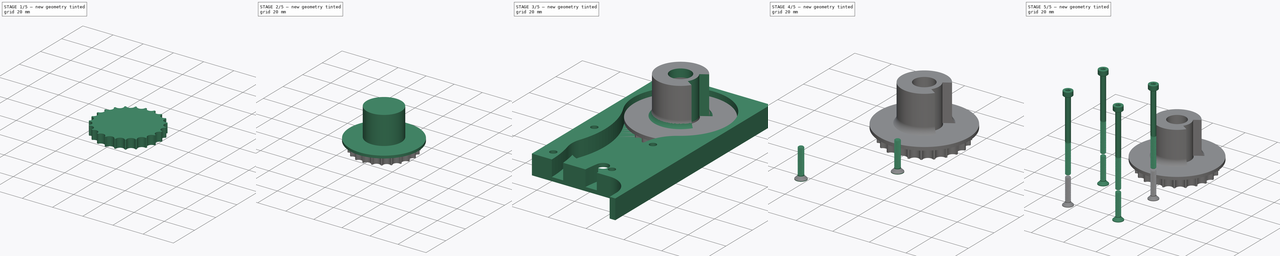
[diagram: build sequence overview — one tinted view per stage of 5, left to right]
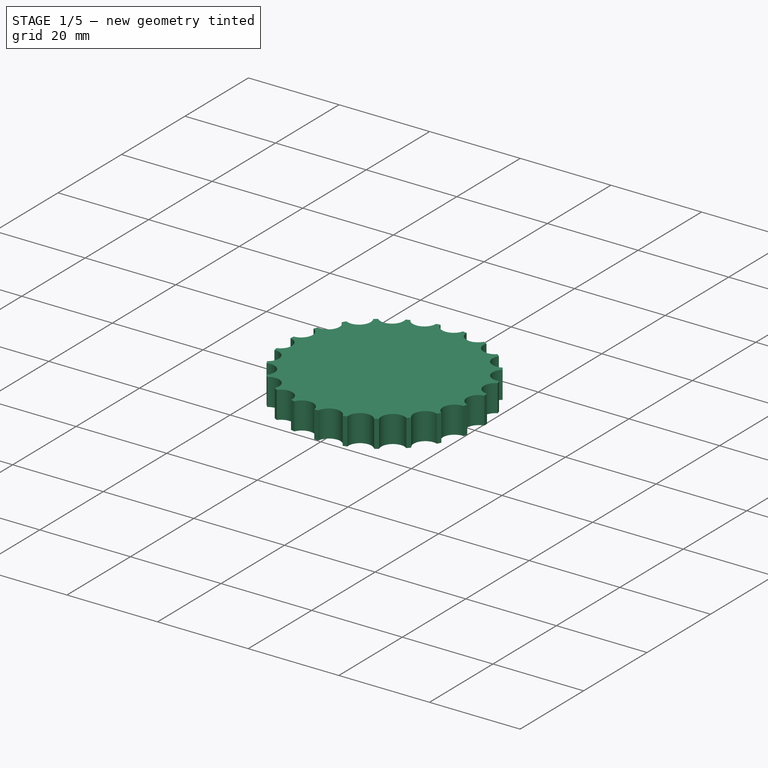
[diagram: stage 1 of 5 — iso view after this stage's code; geometry added in this stage tinted green]
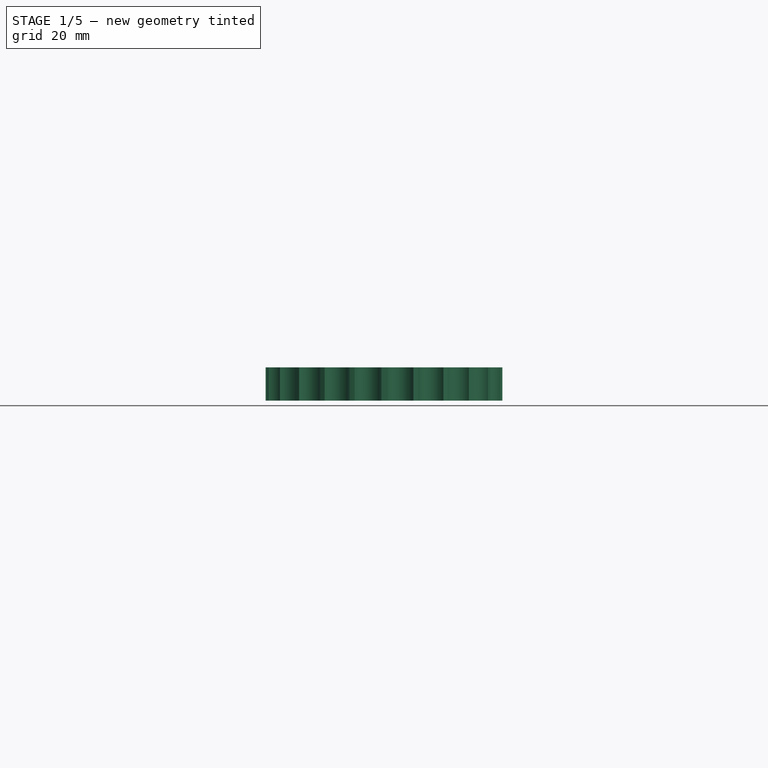
[diagram: stage 1 of 5 — front view after this stage's code; geometry added in this stage tinted green]
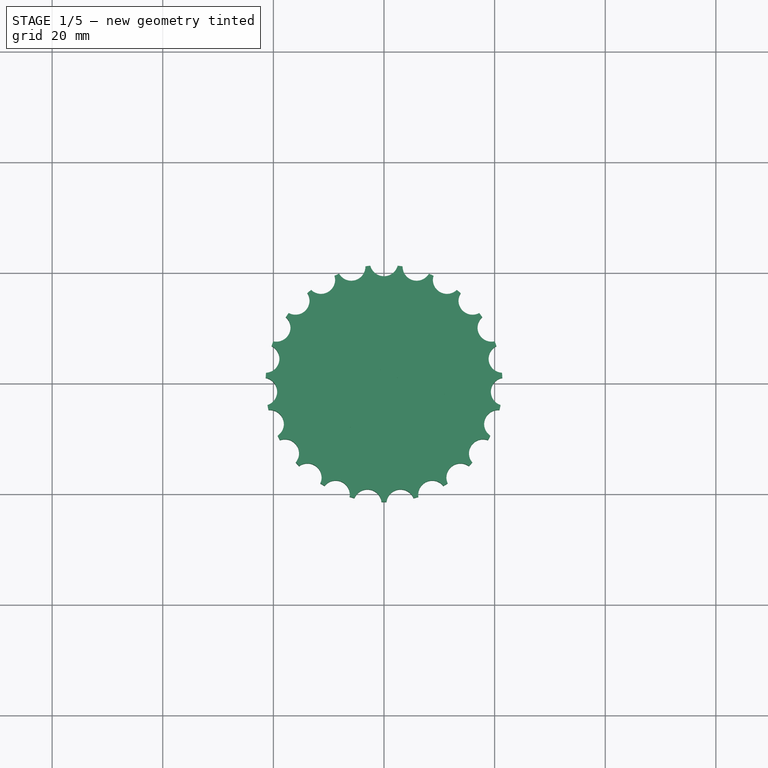
[diagram: stage 1 of 5 — top view after this stage's code; geometry added in this stage tinted green]
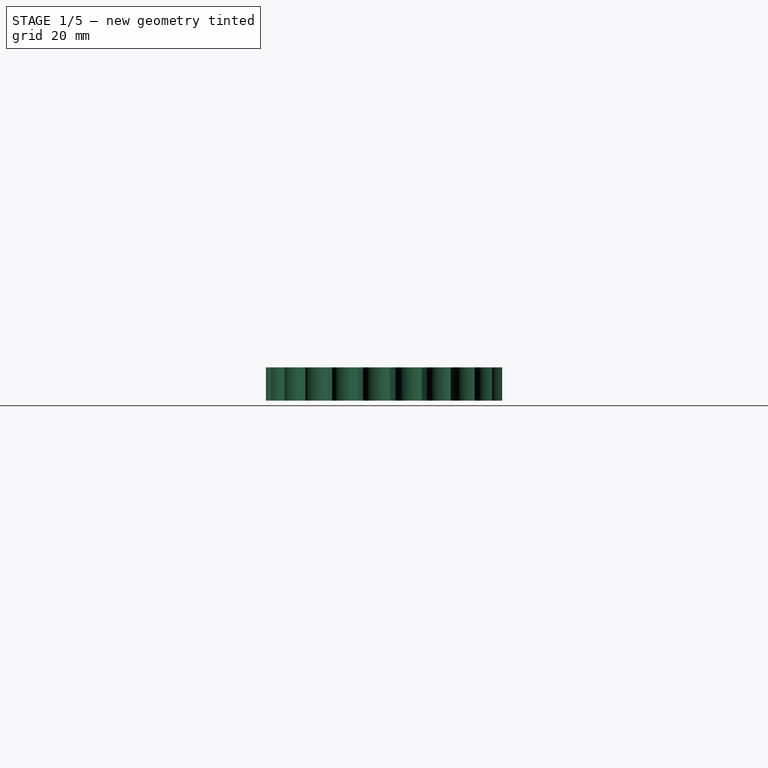
[diagram: stage 1 of 5 — right view after this stage's code; geometry added in this stage tinted green]
FCSTD DOCUMENT  (FreeCAD 0.21R33771 (Git))
Label: integrated-roller-clutch-v2
License: All rights reserved
LicenseURL: http://en.wikipedia.org/wiki/All_rights_reserved
objects: App::Link×37, Sketcher::SketchObject×29, Part::Feature×20, PartDesign::Pocket×13, PartDesign::Pad×12, Part::FeaturePython×9, PartDesign::Body×5, App::Part×5, PartDesign::Hole×3, PartDesign::PolarPattern×2, PartDesign::AdditiveHelix×1, PartDesign::CoordinateSystem×1, PartDesign::Revolution×1, Spreadsheet::Sheet×1
note: 125 computed .brp shape members not serialized (recipe doc carries the construction recipe); baked Part::Feature solids carry a one-line shape summary decoded from their .brp

FEATURE [Sketcher::SketchObject] Sketch003
  FullyConstrained = true
  MapMode = 5
  Support = -> [XY_Plane001]
  expr: Constraints[7] = 13 * 6 / pi - 1
  sketch-geometry (3):
    g0: Circle CenterX=0 CenterY=0 CenterZ=0 NormalX=0 NormalY=0 NormalZ=1 AngleXU=0 Radius=11.9141
    g1: ArcOfCircle CenterX=0 CenterY=0 CenterZ=0 NormalX=0 NormalY=0 NormalZ=1 AngleXU=0 Radius=2.575 StartAngle=2.28245 EndAngle=7.14233
    g2: LineSegment StartX=-1.6817 StartY=1.95 StartZ=0 EndX=1.6817 EndY=1.95 EndZ=0
  constraints (8):
    c: Coincident(g0,g-1)
    c: Coincident(g1,g0)
    c: Coincident(g2,g1)
    c: Coincident(g2,g1)
    c: Horizontal(g2)
    c: Diameter(g1) = 5.15
    c: Distance(g0,g2) = 1.95
    c: Diameter(g0) = 23.8282
FEATURE [PartDesign::Pad] Pad001
  Direction = (1,1,1)
  Length = 6
  Length2 = 100
  Profile = -> Sketch003
  Type = 0
FEATURE [Sketcher::SketchObject] Sketch004
  ExternalGeometry = -> [Pad001]
  FullyConstrained = true
  MapMode = 5
  Placement = pos=(0,0,6) rot=(0,0,1;0rad)
  Support = -> [Pad001]
  sketch-geometry (2):
    g0: Circle CenterX=0 CenterY=12.4141 CenterZ=0 NormalX=0 NormalY=0 NormalZ=1 AngleXU=0 Radius=2.55
    g1: GeomPoint X=0 Y=11.9141 Z=0
  constraints (6):
    c: PointOnObject(g0,g-2)
    c: PointOnObject(g1,g-2)
    c: PointOnObject(g1,g-3)
    c: Distance(g0,g1) = 0.5
    c: Diameter(g0) = 5.1
    c: Distance(g-1,g0) = 12.4141
FEATURE [PartDesign::Pocket] Pocket001
  BaseFeature = -> Pad001
  Direction = (1,1,1)
  Length = 5
  Length2 = 100
  Profile = -> Sketch004
  Type = 1
FEATURE [PartDesign::PolarPattern] PolarPattern
  Angle = 360
  Axis = -> Sketch004 [N_Axis]
  BaseFeature = -> Pocket001
  Occurrences = 13
  Originals = -> [Pocket001]
FEATURE [Sketcher::SketchObject] Sketch012
  FullyConstrained = true
  MapMode = 5
  Support = -> [XY_Plane002]
  expr: Constraints[1] = 23 * 5.85 / pi
  sketch-geometry (1):
    g0: Circle CenterX=0 CenterY=0 CenterZ=0 NormalX=0 NormalY=0 NormalZ=1 AngleXU=0 Radius=21.4143
  constraints (2):
    c: Coincident(g0,g-1)
    c: Diameter(g0) = 42.8286
FEATURE [PartDesign::Pad] Pad007
  Direction = (1,1,1)
  Length = 6
  Length2 = 100
  Profile = -> Sketch012
  Type = 0
  expr: Length = Pad001.Length
FEATURE [Sketcher::SketchObject] Sketch013
  ExternalGeometry = -> [Pad007]
  FullyConstrained = true
  MapMode = 5
  Placement = pos=(0,0,6) rot=(0,0,1;0rad)
  Support = -> [Pad007]
  sketch-geometry (2):
    g0: Circle CenterX=0 CenterY=21.9143 CenterZ=0 NormalX=0 NormalY=0 NormalZ=1 AngleXU=0 Radius=2.55
    g1: GeomPoint X=0 Y=21.4143 Z=0
  constraints (5):
    c: PointOnObject(g0,g-2)
    c: PointOnObject(g1,g-3)
    c: PointOnObject(g1,g-2)
    c: Distance(g1,g0) = 0.5
    c: Diameter(g0) = 5.1
FEATURE [PartDesign::Pocket] Pocket002
  BaseFeature = -> Pad007
  Direction = (1,1,1)
  Length = 5
  Length2 = 100
  Profile = -> Sketch013
  Type = 1
FEATURE [PartDesign::PolarPattern] PolarPattern001
  Angle = 360
  Axis = -> Sketch013 [N_Axis]
  BaseFeature = -> Pocket002
  Occurrences = 23
  Originals = -> [Pocket002]
FEATURE [Sketcher::SketchObject] Sketch014
  FullyConstrained = true
  MapMode = 5
  Placement = pos=(0,0,0) rot=(1,0,0;3.14159rad)
  Support = -> [PolarPattern001]
  expr: Constraints[1] = 27 + 6 + 1
  expr: Constraints[3] = 20.3
  sketch-geometry (2):
    g0: Circle CenterX=0 CenterY=0 CenterZ=0 NormalX=0 NormalY=0 NormalZ=1 AngleXU=0 Radius=17
    g1: Circle CenterX=0 CenterY=0 CenterZ=0 NormalX=0 NormalY=0 NormalZ=1 AngleXU=0 Radius=10.15
  constraints (4):
    c: Coincident(g0,g-1)
    c: Diameter(g0) = 34
    c: Coincident(g1,g0)
    c: Diameter(g1) = 20.3
FEATURE [PartDesign::Pocket] Pocket003
  BaseFeature = -> PolarPattern001
  Direction = (0,0,1)
  Length = 4
  Length2 = 100
  Profile = -> Sketch014
  Type = 0
FEATURE [PartDesign::Body] Body002  label="Cover Gear"
  Group = -> [Sketch012,Pad007,Sketch013,Pocket002,PolarPattern001,Sketch014,Pocket003,Sketch015,Pocket004,Sketch016,Pad008,Sketch018,Pad009,Sketch060,Pocket013]
  Origin = -> Origin002
  Placement = pos=(0,0,2.4) rot=(0,0,1;0rad)
  Tip = -> Pocket013
  expr: .Placement.Base.z = 2 + 0.4
FEATURE [Sketcher::SketchObject] Sketch062
  ExternalGeometry = -> [PolarPattern]
  FullyConstrained = true
  MapMode = 5
  Placement = pos=(0,0,6) rot=(0,0,1;0rad)
  Support = -> [PolarPattern]
  sketch-geometry (1):
    g0: Circle CenterX=0 CenterY=0 CenterZ=0 NormalX=0 NormalY=0 NormalZ=1 AngleXU=0 Radius=2.575
  constraints (2):
    c: Coincident(g0,g-1)
    c: Tangent(g0,g-3)
FEATURE [PartDesign::Pocket] Pocket014
  BaseFeature = -> PolarPattern
  Direction = (1,1,1)
  Length = 1.2
  Length2 = 100
  Profile = -> Sketch062
  Type = 0
FEATURE [PartDesign::Body] Body001  label="Stepper Gear"
  Group = -> [Sketch003,Pad001,Sketch004,Pocket001,PolarPattern,Sketch062,Pocket014]
  Origin = -> Origin001
  Placement = pos=(-5.85,-50.15,2.4) rot=(0,0,1;1.5708rad)
  Tip = -> Pocket014
  expr: .Placement.Base.x = -28 + 2 + 40.3 / 2
  expr: .Placement.Base.y = -(25 + 5 + 40.3 / 2)
  expr: .Placement.Base.z = 2 + 0.4
FEATURE [Spreadsheet::Sheet] Spreadsheet  label="Tolerances"
  cells = A5='Snug; B5(Snug)=0.2; A6='Loose; B6(Loose)=0.4
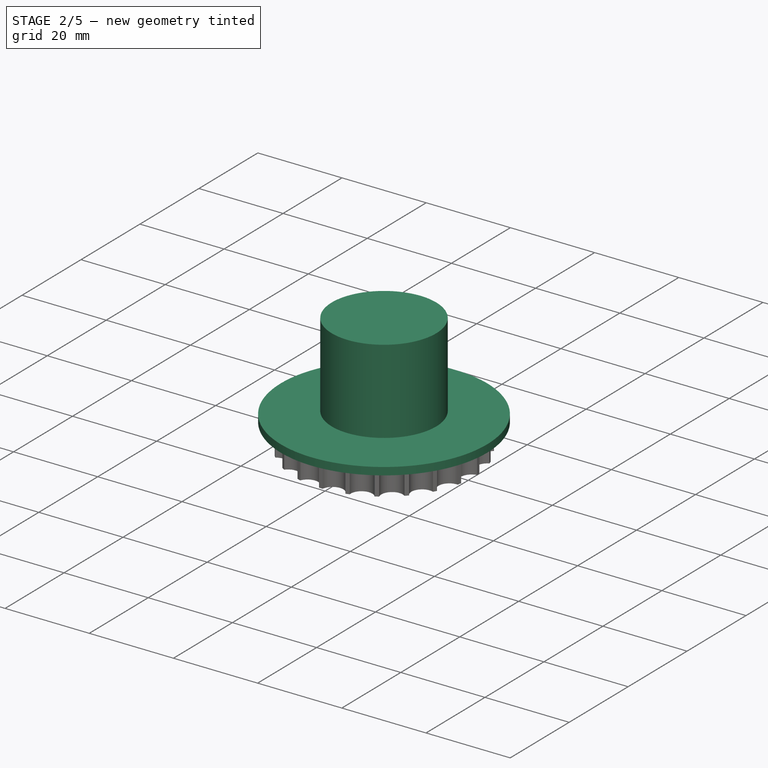
[diagram: stage 2 of 5 — iso view after this stage's code; geometry added in this stage tinted green]
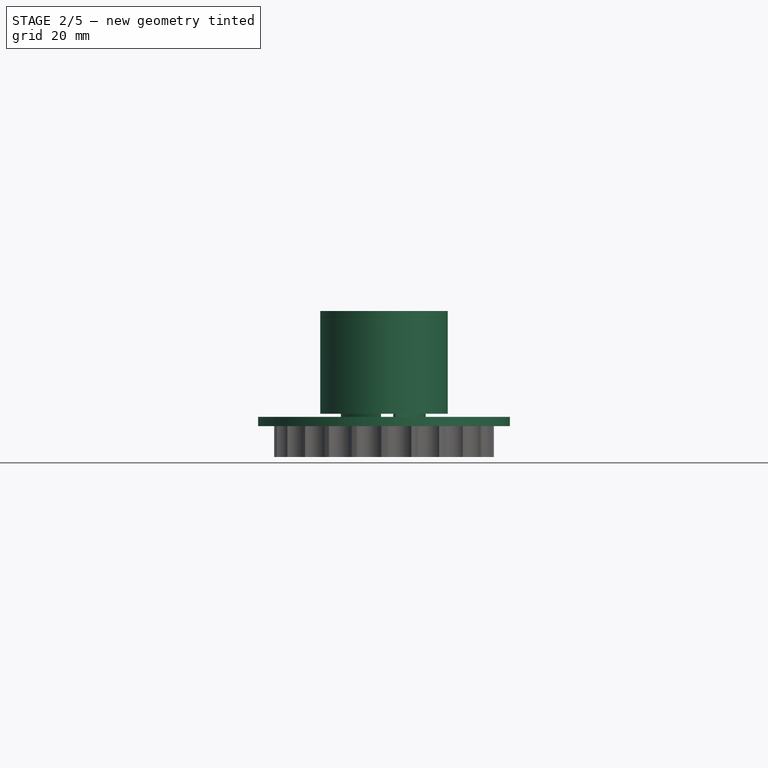
[diagram: stage 2 of 5 — front view after this stage's code; geometry added in this stage tinted green]
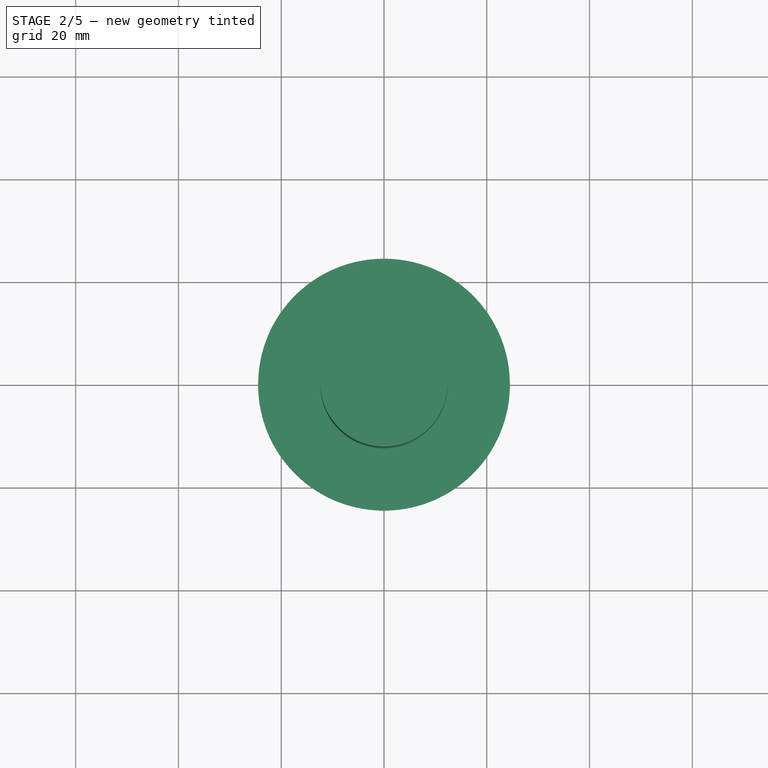
[diagram: stage 2 of 5 — top view after this stage's code; geometry added in this stage tinted green]
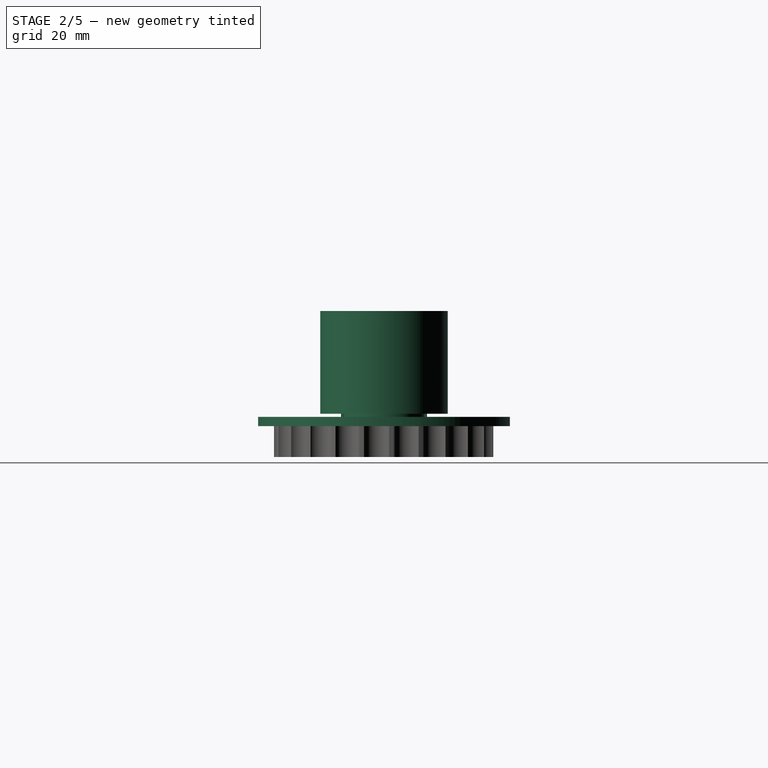
[diagram: stage 2 of 5 — right view after this stage's code; geometry added in this stage tinted green]
FEATURE [Sketcher::SketchObject] Sketch015
  FullyConstrained = true
  MapMode = 5
  Placement = pos=(0,0,0) rot=(1,0,0;3.14159rad)
  Support = -> [Pocket003]
  expr: Constraints[1] = 16.8
  sketch-geometry (1):
    g0: Circle CenterX=0 CenterY=0 CenterZ=0 NormalX=0 NormalY=0 NormalZ=1 AngleXU=0 Radius=8.4
  constraints (2):
    c: Coincident(g0,g-1)
    c: Diameter(g0) = 16.8
FEATURE [PartDesign::Pocket] Pocket004
  BaseFeature = -> Pocket003
  Direction = (0,0,1)
  Length = 5
  Length2 = 100
  Profile = -> Sketch015
  Type = 1
FEATURE [Sketcher::SketchObject] Sketch016
  ExternalGeometry = -> [Pocket004]
  FullyConstrained = true
  MapMode = 5
  Placement = pos=(0,0,0) rot=(1,0,0;3.14159rad)
  Support = -> [Pocket004]
  sketch-geometry (6):
    g0: ArcOfCircle CenterX=0 CenterY=0 CenterZ=0 NormalX=0 NormalY=0 NormalZ=1 AngleXU=0 Radius=8.4 StartAngle=1.65806 EndAngle=4.62512
    g1: ArcOfCircle CenterX=0 CenterY=0 CenterZ=0 NormalX=0 NormalY=0 NormalZ=1 AngleXU=0 Radius=6.7 StartAngle=1.65806 EndAngle=4.62512
    g2: LineSegment StartX=-0.732108 StartY=8.36804 StartZ=0 EndX=-0.583943 EndY=6.6745 EndZ=0
    g3: LineSegment StartX=-0.732108 StartY=-8.36804 StartZ=0 EndX=-0.583943 EndY=-6.6745 EndZ=0
    g4: LineSegment StartX=-0.583943 StartY=-6.6745 StartZ=0 EndX=8.4 EndY=0 EndZ=0
    g5: LineSegment StartX=8.4 StartY=0 StartZ=0 EndX=-0.583943 EndY=6.6745 EndZ=0
  constraints (17):
    c: Coincident(g0,g-1)
    c: PointOnObject(g0,g-3)
    c: Coincident(g1,g0)
    c: Coincident(g2,g0)
    c: Coincident(g2,g1)
    c: Coincident(g3,g0)
    c: Coincident(g3,g1)
    c: Perpendicular(g0,g3)
    c: Perpendicular(g0,g2)
    c: Diameter(g1) = 13.4
    c: Angle(g2,g3) = 2.96706
    c: Coincident(g4,g1)
    c: PointOnObject(g4,g-1)
    c: Coincident(g5,g4)
    c: Coincident(g5,g1)
    c: Equal(g4,g5)
    c: PointOnObject(g4,g-3)
FEATURE [PartDesign::Pad] Pad008
  BaseFeature = -> Pocket004
  Direction = (0,0,-1)
  Length = 20
  Length2 = 100
  Profile = -> Sketch016
  Reversed = true
  Type = 0
FEATURE [Part::Feature] Feature  label="SKF_W 61704-2RS002"
  Placement = pos=(0,0,2.4) rot=(0,-1,0;1.5708rad)
  shape: bbox 29.22 x 29.22 x 4 mm, 58 faces, 20 solids (baked)
FEATURE [Part::Feature] Pulsivo_Stepper_17HS8401S
  Placement = pos=(-5.85,-50.15,57.6) rot=(0.57735,0.57735,-0.57735;4.18879rad)
  shape: bbox 48.3 x 42.3 x 69.31 mm, 192 faces, 0 solids (baked)
  expr: .Placement.Base.z = Pad.Length + 47.2 mm
FEATURE [Sketcher::SketchObject] Sketch018
  ExternalGeometry = -> [Pad008]
  FullyConstrained = true
  MapMode = 5
  Placement = pos=(0,0,6) rot=(0,0,1;0rad)
  Support = -> [Pad008]
  sketch-geometry (2):
    g0: Circle CenterX=0 CenterY=0 CenterZ=0 NormalX=0 NormalY=0 NormalZ=1 AngleXU=0 Radius=24.5
    g1: Circle CenterX=0 CenterY=0 CenterZ=0 NormalX=0 NormalY=0 NormalZ=1 AngleXU=0 Radius=8.4
  constraints (4):
    c: Coincident(g0,g-1)
    c: Coincident(g1,g0)
    c: PointOnObject(g-3,g1)
    c: Diameter(g0) = 49
FEATURE [PartDesign::Pad] Pad009
  BaseFeature = -> Pad008
  Direction = (0,0,1)
  Length = 1.8
  Length2 = 100
  Profile = -> Sketch018
  Type = 0
FEATURE [Sketcher::SketchObject] Sketch020
  FullyConstrained = false
  MapMode = 5
  Placement = pos=(0,0,0) rot=(0.57735,0.57735,0.57735;2.0944rad)
  Support = -> [YZ_Plane]
  sketch-geometry (2):
    g0: Circle CenterX=-84.2293 CenterY=5.2 CenterZ=0 NormalX=0 NormalY=0 NormalZ=1 AngleXU=0 Radius=3.5
    g1: GeomPoint X=-80.7293 Y=5.2 Z=0
  constraints (3):
    c: Diameter(g0) = 7
    c: PointOnObject(g1,g0)
    c: Horizontal(g1,g0)
FEATURE [Sketcher::SketchObject] Sketch019
  FullyConstrained = false
  MapMode = 5
  Placement = pos=(0,0,10.4) rot=(0,0,1;0rad)
  sketch-geometry (7):
    g0: LineSegment StartX=28.0692 StartY=22.5865 StartZ=0 EndX=27.0025 EndY=22.5865 EndZ=0
    g1: LineSegment StartX=26.0025 StartY=23.5865 StartZ=0 EndX=26.0025 EndY=25.0865 EndZ=0
    g2: LineSegment StartX=26.0025 StartY=25.0865 StartZ=0 EndX=24.0025 EndY=25.0865 EndZ=0
    g3: ArcOfCircle CenterX=28.9326 CenterY=20.9584 CenterZ=0 NormalX=0 NormalY=0 NormalZ=1 AngleXU=0 Radius=6.43014 StartAngle=2.4445 EndAngle=4.57772
    g4: LineSegment StartX=28.0692 StartY=14.5865 StartZ=0 EndX=28.0692 EndY=22.5865 EndZ=0
    g5: ArcOfCircle CenterX=27.0025 CenterY=23.5865 CenterZ=0 NormalX=0 NormalY=0 NormalZ=1 AngleXU=0 Radius=1 StartAngle=3.14159 EndAngle=4.71239
    g6: GeomPoint X=22.5025 Y=20.9865 Z=0
  constraints (16):
    c: Horizontal(g0)
    c: Vertical(g1)
    c: Coincident(g2,g1)
    c: Horizontal(g2)
    c: Coincident(g3,g2)
    c: Coincident(g4,g3)
    c: Coincident(g4,g0)
    c: Tangent(g1,g5) = 1.5708
    c: Tangent(g0,g5) = 1.5708
    c: Distance(g4) = 8
    c: DistanceY(g0,g1) = 2.5
    c: PointOnObject(g6,g3)
    c: DistanceY(g6,g2) = 4.1
    c: Radius(g5) = 1
    c: Distance(g2) = 2
    c: DistanceX(g6,g1) = 3.5
FEATURE [Sketcher::SketchObject] Sketch049
  FullyConstrained = true
  MapMode = 5
  Support = -> [XY_Plane011]
  sketch-geometry (7):
    g0: ArcOfCircle CenterX=0 CenterY=0 CenterZ=0 NormalX=0 NormalY=0 NormalZ=1 AngleXU=0 Radius=8.1 StartAngle=4.99164 EndAngle=7.57473
    g1: ArcOfCircle CenterX=0 CenterY=0 CenterZ=0 NormalX=0 NormalY=0 NormalZ=1 AngleXU=0 Radius=6.5 StartAngle=4.99164 EndAngle=7.57473
    g2: LineSegment StartX=1.79164 StartY=6.2482 StartZ=0 EndX=2.23266 EndY=7.78622 EndZ=0
    g3: LineSegment StartX=1.79164 StartY=-6.2482 StartZ=0 EndX=2.23266 EndY=-7.78622 EndZ=0
    g4: GeomPoint X=-5 Y=0 Z=0
    g5: LineSegment StartX=-5 StartY=0 StartZ=0 EndX=1.79164 EndY=6.2482 EndZ=0
    g6: LineSegment StartX=-5 StartY=0 StartZ=0 EndX=1.79164 EndY=-6.2482 EndZ=0
  constraints (18):
    c: Coincident(g0,g-1)
    c: Coincident(g1,g0)
    c: Coincident(g2,g1)
    c: Coincident(g2,g0)
    c: Coincident(g3,g1)
    c: Coincident(g3,g0)
    c: Perpendicular(g0,g2)
    c: Perpendicular(g1,g3)
    c: Diameter(g1) = 13
    c: Angle(g3,g2) = 2.58309
    c: PointOnObject(g4,g-1)
    c: Coincident(g5,g4)
    c: Coincident(g5,g1)
    c: Coincident(g6,g4)
    c: Coincident(g6,g1)
    c: Equal(g6,g5)
    c: Distance(g4,g0) = 5
    c: Distance(g2) = 1.6
FEATURE [Sketcher::SketchObject] Sketch050
  FullyConstrained = true
  MapMode = 5
  Placement = pos=(0,0,8.4) rot=(0,0,1;0rad)
  sketch-geometry (1):
    g0: Circle CenterX=0 CenterY=0 CenterZ=0 NormalX=0 NormalY=0 NormalZ=1 AngleXU=0 Radius=12.4
  constraints (2):
    c: Coincident(g0,g-1)
    c: Diameter(g0) = 24.8
FEATURE [PartDesign::Pad] Pad022
  AllowMultiFace = false
  Direction = (1,1,1)
  Length = 20
  Length2 = 100
  Placement = pos=(0,0,8.4) rot=(0,0,1;0rad)
  Profile = -> Sketch050
  Type = 0
  expr: Length = 20
FEATURE [Sketcher::SketchObject] Sketch058
  FullyConstrained = true
  MapMode = 5
  Placement = pos=(0,0,24.1) rot=(1,0,0;3.14159rad)
  sketch-geometry (1):
    g0: Circle CenterX=0 CenterY=0 CenterZ=0 NormalX=0 NormalY=0 NormalZ=1 AngleXU=0 Radius=5.5
  constraints (2):
    c: Coincident(g0,g-1)
    c: Diameter(g0) = 11
FEATURE [PartDesign::Pad] Pad027
  BaseFeature = -> Pad022
  Direction = (1,1,1)
  Length = 10
  Length2 = 100
  Placement = pos=(0,0,8.4) rot=(0,0,1;0rad)
  Profile = -> Sketch049
  Type = 3
  UpToFace = -> Pad022 [Face2]
FEATURE [Sketcher::SketchObject] Sketch056
  ExternalGeometry = -> [Pad027]
  FullyConstrained = true
  MapMode = 5
  Placement = pos=(0,0,8.4) rot=(1,0,0;3.14159rad)
  sketch-geometry (4):
    g0: ArcOfCircle CenterX=0 CenterY=0 CenterZ=0 NormalX=0 NormalY=0 NormalZ=1 AngleXU=0 Radius=9 StartAngle=1.29154 EndAngle=4.99164
    g1: ArcOfCircle CenterX=0 CenterY=0 CenterZ=0 NormalX=0 NormalY=0 NormalZ=1 AngleXU=0 Radius=6.5 StartAngle=4.99164 EndAngle=7.57473
    g2: LineSegment StartX=1.79164 StartY=6.2482 StartZ=0 EndX=2.48074 EndY=8.65136 EndZ=0
    g3: LineSegment StartX=1.79164 StartY=-6.2482 StartZ=0 EndX=2.48074 EndY=-8.65136 EndZ=0
  constraints (11):
    c: Coincident(g0,g-1)
    c: Coincident(g1,g0)
    c: Coincident(g1,g-3)
    c: Coincident(g1,g-3)
    c: Coincident(g2,g1)
    c: Coincident(g3,g1)
    c: Coincident(g0,g2)
    c: Coincident(g0,g3)
    c: PointOnObject(g-4,g2)
    c: PointOnObject(g-4,g3)
    c: Diameter(g0) = 18
FEATURE [PartDesign::Pocket] Pocket009
  BaseFeature = -> Pad027
  Direction = (1,1,1)
  Length = 12.2
  Length2 = 100
  Placement = pos=(0,0,8.4) rot=(0,0,1;0rad)
  Profile = -> Sketch056
  Type = 0
FEATURE [Sketcher::SketchObject] Sketch057
  FullyConstrained = true
  MapMode = 5
  Placement = pos=(0,0,20.6) rot=(1,0,0;3.14159rad)
  Support = -> [Pocket009]
  sketch-geometry (1):
    g0: Circle CenterX=0 CenterY=0 CenterZ=0 NormalX=0 NormalY=0 NormalZ=1 AngleXU=0 Radius=6.05
  constraints (2):
    c: Coincident(g0,g-1)
    c: Diameter(g0) = 12.1
FEATURE [PartDesign::Pocket] Pocket010
  BaseFeature = -> Pocket009
  Direction = (1,1,1)
  Length = 3.5
  Length2 = 100
  Placement = pos=(0,0,8.4) rot=(0,0,1;0rad)
  Profile = -> Sketch057
  Type = 0
FEATURE [PartDesign::Body] Body006  label="Cover Adapter"
  Group = -> [Sketch050,Pad022,Sketch056,Sketch049,Pad027,Pocket009,Sketch057,Pocket010,Sketch058,Pocket011,Sketch055,Pocket012,Sketch059,Revolution]
  Origin = -> Origin011
  Placement = pos=(0,0,2.4) rot=(0,0,1;0rad)
  Tip = -> Revolution
FEATURE [Sketcher::SketchObject] Sketch060
  ExternalGeometry = -> [Pad009]
  FullyConstrained = true
  MapMode = 5
  Placement = pos=(0,0,4) rot=(1,0,0;3.14159rad)
  Support = -> [Pad009]
  sketch-geometry (2):
    g0: Circle CenterX=0 CenterY=0 CenterZ=0 NormalX=0 NormalY=0 NormalZ=1 AngleXU=0 Radius=17
    g1: Circle CenterX=0 CenterY=0 CenterZ=0 NormalX=0 NormalY=0 NormalZ=1 AngleXU=0 Radius=11
  constraints (4):
    c: Coincident(g0,g-1)
    c: Equal(g0,g-3)
    c: Coincident(g1,g0)
    c: Diameter(g1) = 22
FEATURE [PartDesign::Pocket] Pocket013
  BaseFeature = -> Pad009
  Direction = (0,0,1)
  Length = 0.4
  Length2 = 100
  Profile = -> Sketch060
  Type = 0
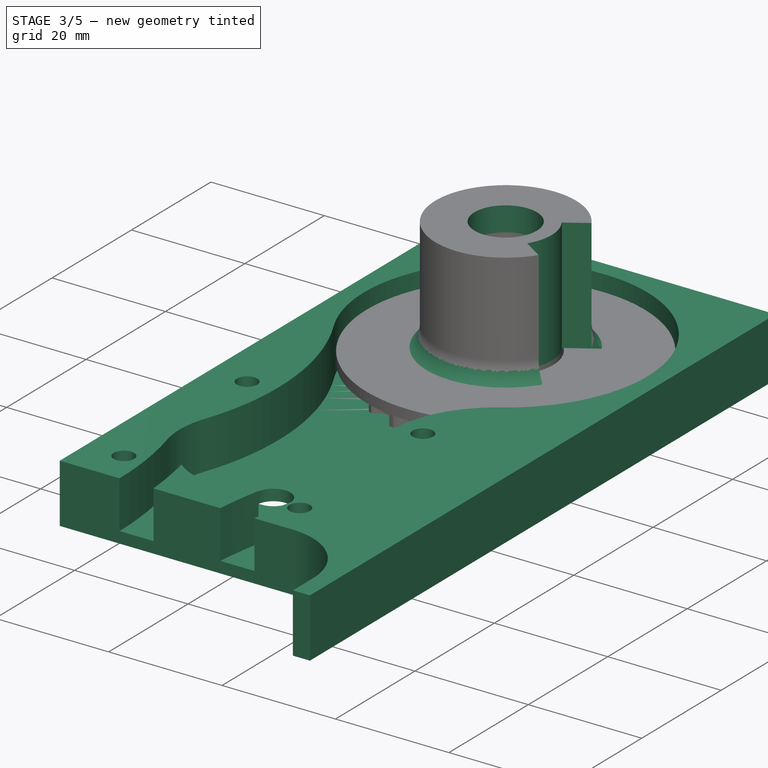
[diagram: stage 3 of 5 — iso view after this stage's code; geometry added in this stage tinted green]
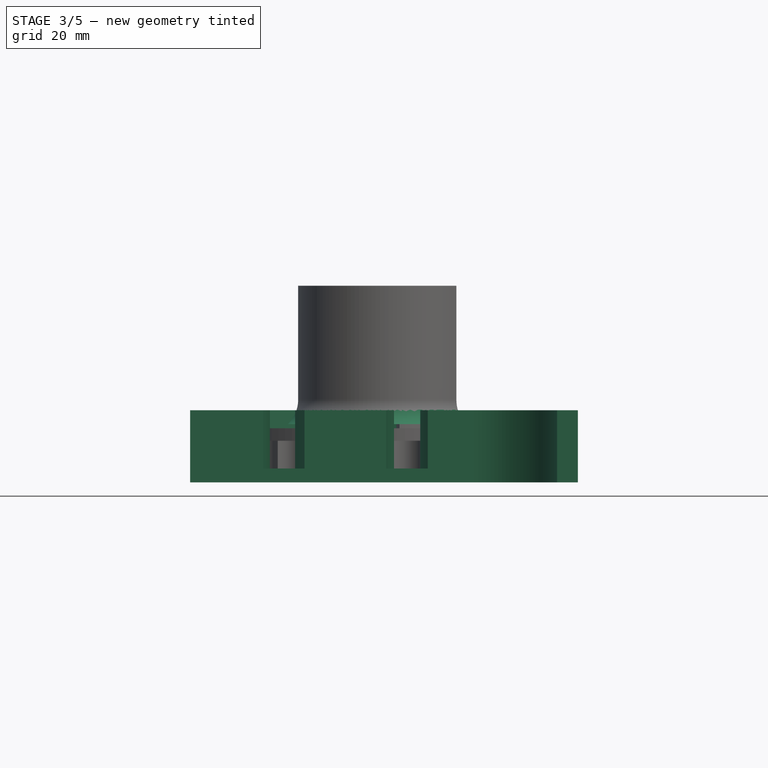
[diagram: stage 3 of 5 — front view after this stage's code; geometry added in this stage tinted green]
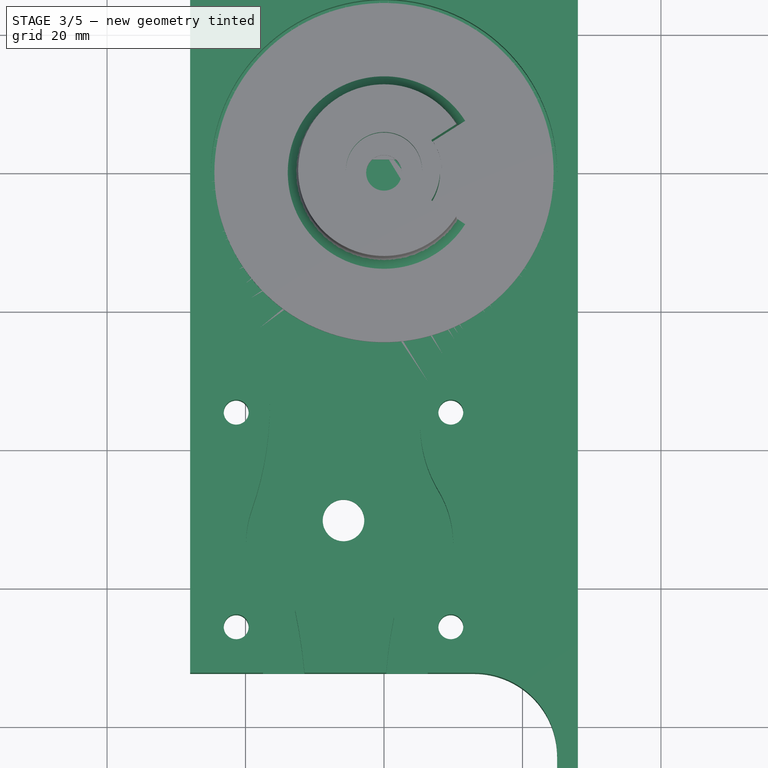
[diagram: stage 3 of 5 — top view after this stage's code; geometry added in this stage tinted green]
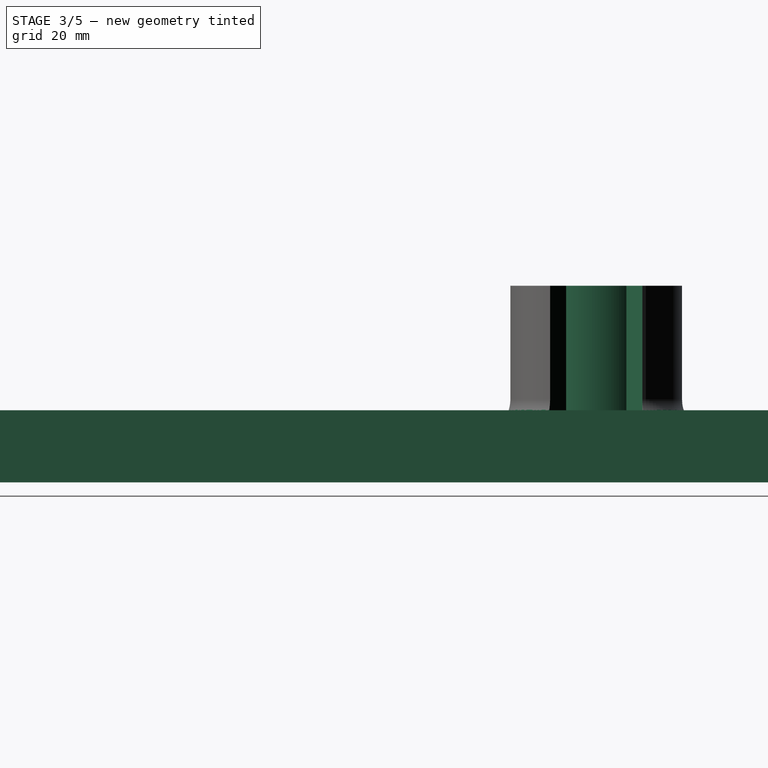
[diagram: stage 3 of 5 — right view after this stage's code; geometry added in this stage tinted green]
FEATURE [Sketcher::SketchObject] Sketch
  FullyConstrained = true
  MapMode = 5
  Support = -> [XY_Plane]
  expr: Constraints[10] = 50
  sketch-geometry (18):
    g0: Circle CenterX=0 CenterY=0 CenterZ=0 NormalX=0 NormalY=0 NormalZ=1 AngleXU=0 Radius=25
    g1: LineSegment StartX=-28 StartY=28 StartZ=0 EndX=28 EndY=28 EndZ=0
    g2: LineSegment StartX=28 StartY=28 StartZ=0 EndX=28 EndY=-89.3 EndZ=0
    g3: LineSegment StartX=28 StartY=-89.3 StartZ=0 EndX=25 EndY=-89.3 EndZ=0
    g4: LineSegment StartX=25 StartY=-89.3 StartZ=0 EndX=25 EndY=-84.3 EndZ=0
    g5: LineSegment StartX=13 StartY=-72.3 StartZ=0 EndX=-28 EndY=-72.3 EndZ=0
    g6: LineSegment StartX=-28 StartY=-72.3 StartZ=0 EndX=-28 EndY=28 EndZ=0
    g7: ArcOfCircle CenterX=13 CenterY=-84.3 CenterZ=0 NormalX=0 NormalY=0 NormalZ=1 AngleXU=0 Radius=12 StartAngle=0 EndAngle=1.5708
    g8: GeomPoint X=0 Y=-25 Z=0
    g9: GeomPoint X=0 Y=-30 Z=0
    g10: LineSegment StartX=14.3 StartY=-30 StartZ=0 EndX=-26 EndY=-30 EndZ=0
    g11: LineSegment StartX=-26 StartY=-30 StartZ=0 EndX=-26 EndY=-70.3 EndZ=0
    g12: LineSegment StartX=-26 StartY=-70.3 StartZ=0 EndX=14.3 EndY=-70.3 EndZ=0
    g13: LineSegment StartX=14.3 StartY=-70.3 StartZ=0 EndX=14.3 EndY=-30 EndZ=0
    g14: Circle CenterX=-5.85 CenterY=-50.15 CenterZ=0 NormalX=0 NormalY=0 NormalZ=1 AngleXU=0 Radius=28.4964
    g15: Circle CenterX=-5.85 CenterY=-50.15 CenterZ=0 NormalX=0 NormalY=0 NormalZ=1 AngleXU=0 Radius=3
    g16: LineSegment StartX=-28 StartY=-70.3 StartZ=0 EndX=-26 EndY=-70.3 EndZ=0
    g17: LineSegment StartX=-26 StartY=-70.3 StartZ=0 EndX=-26 EndY=-72.3 EndZ=0
  constraints (50):
    c: Coincident(g0,g-1)
    c: Horizontal(g1)
    c: Coincident(g2,g1)
    c: Vertical(g2)
    c: Coincident(g3,g2)
    c: Coincident(g4,g3)
    c: Horizontal(g5)
    c: Vertical(g6)
    c: Vertical(g4)
    c: Horizontal(g3)
    c: Diameter(g0) = 50
    c: Tangent(g7,g4) = -1.5708
    c: Distance(g3) = 3
    c: Tangent(g7,g5) = -1.5708
    c: Distance(g4) = 5
    c: PointOnObject(g8,g0)
    c: PointOnObject(g9,g-2)
    c: Distance(g9,g8) = 5
    c: Diameter(g7) = 24
    c: Coincident(g5,g6)
    c: Coincident(g10,g11)
    c: Coincident(g11,g12)
    c: Coincident(g12,g13)
    c: Coincident(g13,g10)
    c: Equal(g10,g11)
    c: Equal(g10,g12)
    c: Equal(g10,g13)
    c: PointOnObject(g10,g14)
    c: PointOnObject(g11,g14)
    c: PointOnObject(g12,g14)
    c: PointOnObject(g13,g14)
    c: Parallel(g12,g5)
    c: PointOnObject(g9,g10)
    c: Distance(g13) = 40.3
    c: Coincident(g15,g14)
    c: Diameter(g15) = 6
    c: Distance(g10) = 40.3
    c: PointOnObject(g16,g6)
    c: Coincident(g16,g11)
    c: Coincident(g17,g16)
    c: PointOnObject(g17,g5)
    c: Equal(g17,g16)
    c: Distance(g17) = 2
    c: Perpendicular(g12,g17)
    c: Perpendicular(g11,g16)
    c: PointOnObject(g8,g-2)
    c: DistanceY(g-1,g1) = 28
    c: DistanceX(g-1,g1) = 28
    c: Coincident(g1,g6)
    c: Distance(g1) = 56
FEATURE [PartDesign::Pad] Pad
  Direction = (0,0,1)
  Length = 10.4
  Length2 = 100
  Profile = -> Sketch
  Type = 0
  expr: Length = 2 mm + 0.2 mm + Pad001.Length + 0.2 mm + 2 mm
FEATURE [Sketcher::SketchObject] Sketch005
  ExternalGeometry = -> [Pad]
  FullyConstrained = true
  MapMode = 5
  Placement = pos=(0,0,0) rot=(1,0,0;3.14159rad)
  Support = -> [Pad]
  sketch-geometry (9):
    g0: LineSegment StartX=9.65 StartY=34.65 StartZ=0 EndX=9.65 EndY=65.65 EndZ=0
    g1: LineSegment StartX=9.65 StartY=65.65 StartZ=0 EndX=-21.35 EndY=65.65 EndZ=0
    g2: LineSegment StartX=-21.35 StartY=65.65 StartZ=0 EndX=-21.35 EndY=34.65 EndZ=0
    g3: LineSegment StartX=-21.35 StartY=34.65 StartZ=0 EndX=9.65 EndY=34.65 EndZ=0
    g4: Circle CenterX=-5.85 CenterY=50.15 CenterZ=0 NormalX=0 NormalY=0 NormalZ=1 AngleXU=0 Radius=21.9203
    g5: Circle CenterX=-21.35 CenterY=65.65 CenterZ=0 NormalX=0 NormalY=0 NormalZ=1 AngleXU=0 Radius=1.5
    g6: Circle CenterX=9.65 CenterY=65.65 CenterZ=0 NormalX=0 NormalY=0 NormalZ=1 AngleXU=0 Radius=1.5
    g7: Circle CenterX=9.65 CenterY=34.65 CenterZ=0 NormalX=0 NormalY=0 NormalZ=1 AngleXU=0 Radius=1.5
    g8: Circle CenterX=-21.35 CenterY=34.65 CenterZ=0 NormalX=0 NormalY=0 NormalZ=1 AngleXU=0 Radius=1.5
  constraints (22):
    c: Coincident(g0,g1)
    c: Coincident(g1,g2)
    c: Coincident(g2,g3)
    c: Coincident(g3,g0)
    c: Equal(g0,g1)
    c: Equal(g0,g2)
    c: Equal(g0,g3)
    c: PointOnObject(g0,g4)
    c: PointOnObject(g1,g4)
    c: PointOnObject(g2,g4)
    c: PointOnObject(g3,g4)
    c: Coincident(g4,g-4)
    c: Parallel(g1,g-3)
    c: Distance(g3) = 31
    c: Coincident(g5,g1)
    c: Coincident(g6,g0)
    c: Coincident(g7,g0)
    c: Coincident(g8,g2)
    c: Diameter(g8) = 3
    c: Equal(g8,g7)
    c: Equal(g8,g6)
    c: Equal(g8,g5)
FEATURE [PartDesign::Hole] Hole
  BaseFeature = -> Pad
  CustomThreadClearance = 0
  Depth = 25
  DepthType = 0
  Diameter = 3.6
  DrillForDepth = false
  DrillPoint = 1
  DrillPointAngle = 118
  HoleCutCountersinkAngle = 90
  HoleCutCustomValues = false
  HoleCutDepth = 0.5
  HoleCutDiameter = 7.1
  HoleCutType = 2
  ModelThread = false
  Profile = -> Sketch005
  Tapered = false
  TaperedAngle = 90
  ThreadClass = 0
  ThreadDepth = 23.5
  ThreadDepthType = 0
  ThreadDirection = 0
  ThreadFit = 2
  ThreadSize = 9
  ThreadType = 1
  Threaded = false
  UseCustomThreadClearance = false
FEATURE [Sketcher::SketchObject] Sketch006
  ExternalGeometry = -> [Hole]
  FullyConstrained = false
  MapMode = 5
  Placement = pos=(0,0,10.4) rot=(0,0,1;0rad)
  Support = -> [Hole]
  expr: Constraints[22] = 13 * 6 / pi
  expr: Constraints[23] = 13 * 6 / pi + 5.1
  expr: Constraints[7] = 50 mm
  sketch-geometry (13):
    g0: ArcOfCircle CenterX=0 CenterY=0 CenterZ=0 NormalX=0 NormalY=0 NormalZ=1 AngleXU=0 Radius=25 StartAngle=5.28927 EndAngle=9.92129
    g1: ArcOfCircle CenterX=-4.96805 CenterY=-53.6706 CenterZ=0 NormalX=0 NormalY=0 NormalZ=1 AngleXU=0 Radius=14.9641 StartAngle=2.8025 EndAngle=3.40354
    g2: ArcOfCircle CenterX=-4.96805 CenterY=-53.6706 CenterZ=0 NormalX=0 NormalY=0 NormalZ=1 AngleXU=0 Radius=14.9641 StartAngle=5.95611 EndAngle=6.82361
    g3: ArcOfCircle CenterX=-74.4541 CenterY=-72.3 CenterZ=0 NormalX=0 NormalY=0 NormalZ=1 AngleXU=0 Radius=56.9759 StartAngle=0 EndAngle=0.261943
    g4: ArcOfCircle CenterX=64.518 CenterY=-77.2446 CenterZ=0 NormalX=0 NormalY=0 NormalZ=1 AngleXU=0 Radius=58.412 StartAngle=2.81451 EndAngle=3.05684
    g5: ArcOfCircle CenterX=64.518 CenterY=-77.2446 CenterZ=0 NormalX=0 NormalY=0 NormalZ=1 AngleXU=0 Radius=64.3925 StartAngle=2.93924 EndAngle=3.06473
    g6: ArcOfCircle CenterX=-88.5335 CenterY=-79.2912 CenterZ=0 NormalX=0 NormalY=0 NormalZ=1 AngleXU=0 Radius=77.3718 StartAngle=0.0904824 EndAngle=0.208564
    g7: ArcOfCircle CenterX=-4.96805 CenterY=-53.6706 CenterZ=0 NormalX=0 NormalY=0 NormalZ=1 AngleXU=0 Radius=12.4141 StartAngle=4.0257 EndAngle=5.25473
    g8: ArcOfCircle CenterX=-61.9597 CenterY=-33.5686 CenterZ=0 NormalX=0 NormalY=0 NormalZ=1 AngleXU=0 Radius=45.4688 StartAngle=5.94409 EndAngle=6.7797
    g9: ArcOfCircle CenterX=23.7228 CenterY=-36.456 CenterZ=0 NormalX=0 NormalY=0 NormalZ=1 AngleXU=0 Radius=18.4949 StartAngle=2.14768 EndAngle=3.68201
    g10: LineSegment StartX=-17.4782 StartY=-72.3 StartZ=0 EndX=-11.4782 EndY=-72.3 EndZ=0
    g11: LineSegment StartX=0.315673 StartY=-72.3 StartZ=0 EndX=6.31567 EndY=-72.3 EndZ=0
    g12: GeomPoint X=-4.96805 Y=-74.7723 Z=0
  constraints (29):
    c: Coincident(g0,g-1)
    c: Coincident(g2,g1)
    c: Coincident(g5,g4)
    c: Coincident(g7,g1)
    c: Coincident(g7,g6)
    c: Coincident(g7,g5)
    c: Tangent(g9,g0) = 1.5708
    c: Diameter(g0) = 50
    c: Tangent(g0,g8) = 1.5708
    c: Tangent(g8,g1) = 1.5708
    c: Tangent(g2,g9) = 1.5708
    c: Equal(g2,g1)
    c: Tangent(g3,g1) = 1.5708
    c: Tangent(g2,g4) = 1.5708
    c: Coincident(g10,g3)
    c: Coincident(g10,g6)
    c: Coincident(g11,g5)
    c: Coincident(g11,g4)
    c: Equal(g10,g11)
    c: Distance(g10) = 6
    c: Vertical(g12,g1)
    c: Symmetric(g3,g4,g12)
    c: Diameter(g7) = 24.8282
    c: Diameter(g1) = 29.9282
    c: PointOnObject(g6,g-5)
    c: PointOnObject(g3,g-5)
    c: PointOnObject(g5,g-5)
    c: PointOnObject(g4,g-5)
    c: PointOnObject(g3,g-5)
FEATURE [PartDesign::Pocket] Pocket
  BaseFeature = -> Hole
  Direction = (0,0,-1)
  Length = 0
  Length2 = 100
  Offset = -2
  Profile = -> Sketch006
  Type = 3
  UpToFace = -> Hole [Face4]
FEATURE [Sketcher::SketchObject] Sketch007
  FullyConstrained = true
  MapMode = 5
  Placement = pos=(0,0,2) rot=(0,0,1;0rad)
  Support = -> [Pocket]
  expr: Constraints[1] = 33 mm
  expr: Constraints[3] = 22
  sketch-geometry (2):
    g0: Circle CenterX=0 CenterY=0 CenterZ=0 NormalX=0 NormalY=0 NormalZ=1 AngleXU=0 Radius=16.5
    g1: Circle CenterX=0 CenterY=0 CenterZ=0 NormalX=0 NormalY=0 NormalZ=1 AngleXU=0 Radius=11
  constraints (4):
    c: Coincident(g0,g-1)
    c: Diameter(g0) = 33
    c: Coincident(g1,g0)
    c: Diameter(g1) = 22
FEATURE [PartDesign::Pad] Pad002
  BaseFeature = -> Pocket
  Direction = (0,0,1)
  Length = 0.4
  Length2 = 100
  Profile = -> Sketch007
  Type = 0
FEATURE [Sketcher::SketchObject] Sketch021
  ExternalGeometry = -> [Pad002]
  FullyConstrained = true
  MapMode = 5
  Placement = pos=(0,0,2.4) rot=(0,0,1;0rad)
  Support = -> [Pad002]
  expr: Constraints[1] = 27.3
  sketch-geometry (2):
    g0: Circle CenterX=0 CenterY=0 CenterZ=0 NormalX=0 NormalY=0 NormalZ=1 AngleXU=0 Radius=13.65
    g1: Circle CenterX=0 CenterY=0 CenterZ=0 NormalX=0 NormalY=0 NormalZ=1 AngleXU=0 Radius=16.5
  constraints (4):
    c: Coincident(g0,g-1)
    c: Diameter(g0) = 27.3
    c: Coincident(g1,g0)
    c: Equal(g1,g-3)
FEATURE [PartDesign::Pad] Pad023
  BaseFeature = -> Pad002
  Direction = (0,0,1)
  Length = 3.6
  Length2 = 100
  Profile = -> Sketch021
  Type = 0
FEATURE [Sketcher::SketchObject] Sketch023
  FullyConstrained = true
  MapMode = 5
  Placement = pos=(0,0,2) rot=(0,0,1;0rad)
  Support = -> [Pad023]
  sketch-geometry (1):
    g0: Circle CenterX=0 CenterY=0 CenterZ=0 NormalX=0 NormalY=0 NormalZ=1 AngleXU=0 Radius=6
  constraints (2):
    c: Coincident(g0,g-1)
    c: Diameter(g0) = 12
FEATURE [PartDesign::Pad] Pad024
  BaseFeature = -> Pad023
  Direction = (0,0,1)
  Length = 1
  Length2 = 100
  Profile = -> Sketch023
  Type = 0
FEATURE [PartDesign::Pocket] Pocket011
  BaseFeature = -> Pocket010
  Direction = (1,1,1)
  Length = 5
  Length2 = 100
  Placement = pos=(0,0,8.4) rot=(0,0,1;0rad)
  Profile = -> Sketch058
  Type = 1
FEATURE [Sketcher::SketchObject] Sketch055
  ExternalGeometry = -> [Pocket011]
  FullyConstrained = true
  MapMode = 5
  Placement = pos=(0,0,28.4) rot=(0,0,1;0rad)
  Support = -> [Pocket011]
  sketch-geometry (4):
    g0: ArcOfCircle CenterX=0 CenterY=0 CenterZ=0 NormalX=0 NormalY=0 NormalZ=1 AngleXU=0 Radius=12.4 StartAngle=5.71595 EndAngle=6.85042
    g1: ArcOfCircle CenterX=0 CenterY=0 CenterZ=0 NormalX=0 NormalY=0 NormalZ=1 AngleXU=0 Radius=8.1 StartAngle=5.71595 EndAngle=6.85042
    g2: LineSegment StartX=6.83147 StartY=-4.35213 StartZ=0 EndX=10.4581 EndY=-6.66252 EndZ=0
    g3: LineSegment StartX=6.83147 StartY=4.35213 StartZ=0 EndX=10.4581 EndY=6.66252 EndZ=0
  constraints (12):
    c: Coincident(g0,g-1)
    c: Coincident(g1,g0)
    c: Coincident(g2,g1)
    c: Coincident(g2,g0)
    c: Coincident(g3,g1)
    c: Coincident(g3,g0)
    c: PointOnObject(g0,g3)
    c: PointOnObject(g0,g2)
    c: Diameter(g0) = 24.8
    c: Symmetric(g1,g1,g-1)
    c: Angle(g2,g3) = 1.13446
    c: Equal(g-3,g1)
FEATURE [PartDesign::Pocket] Pocket012
  BaseFeature = -> Pocket011
  Direction = (1,1,1)
  Length = 5
  Length2 = 100
  Placement = pos=(0,0,8.4) rot=(0,0,1;0rad)
  Profile = -> Sketch055
  Type = 1
FEATURE [Sketcher::SketchObject] Sketch059
  ExternalGeometry = -> [Pocket012]
  FullyConstrained = true
  MapMode = 5
  Placement = pos=(-7e-16,1.1e-15,8.4) rot=(0.924535,0.269477,0.269477;1.64918rad)
  Support = -> [Pocket012]
  sketch-geometry (3):
    g0: LineSegment StartX=12.4 StartY=0 StartZ=0 EndX=13.9 EndY=0 EndZ=0
    g1: LineSegment StartX=12.4 StartY=3.5707 StartZ=0 EndX=12.4 EndY=0 EndZ=0
    g2: ArcOfCircle CenterX=17.4 CenterY=3.57071 CenterZ=0 NormalX=0 NormalY=0 NormalZ=1 AngleXU=0 Radius=5 StartAngle=3.1416 EndAngle=3.93699
  constraints (9):
    c: Coincident(g0,g-3)
    c: PointOnObject(g0,g-1)
    c: PointOnObject(g1,g-3)
    c: Coincident(g1,g0)
    c: Distance(g0) = 1.5
    c: Coincident(g2,g1)
    c: Tangent(g2,g-3)
    c: Coincident(g2,g0)
    c: Diameter(g2) = 10
FEATURE [PartDesign::Revolution] Revolution
  Angle = 295
  Axis = (1e-16,-3e-16,1)
  Base = (-7e-16,1.1e-15,8.4)
  BaseFeature = -> Pocket012
  Placement = pos=(0,0,8.4) rot=(0,0,1;0rad)
  Profile = -> Sketch059
  ReferenceAxis = -> Sketch059 [V_Axis]
  expr: Angle = 360 - 65
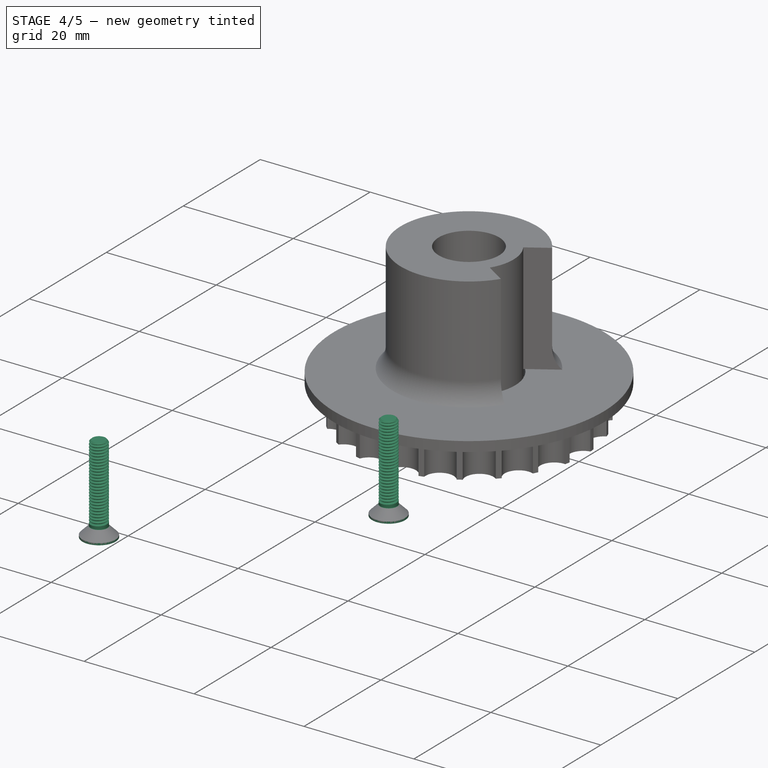
[diagram: stage 4 of 5 — iso view after this stage's code; geometry added in this stage tinted green]
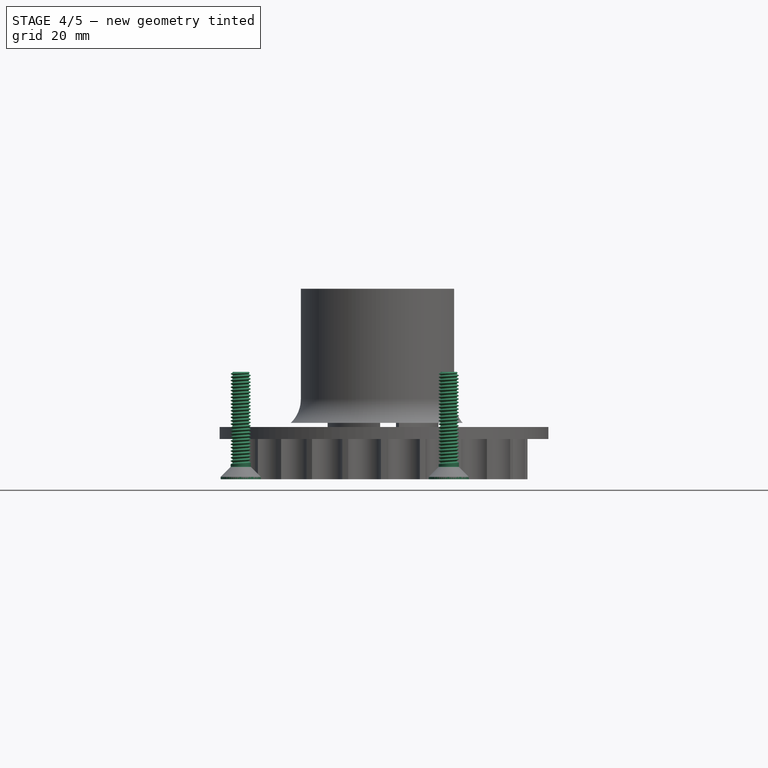
[diagram: stage 4 of 5 — front view after this stage's code; geometry added in this stage tinted green]
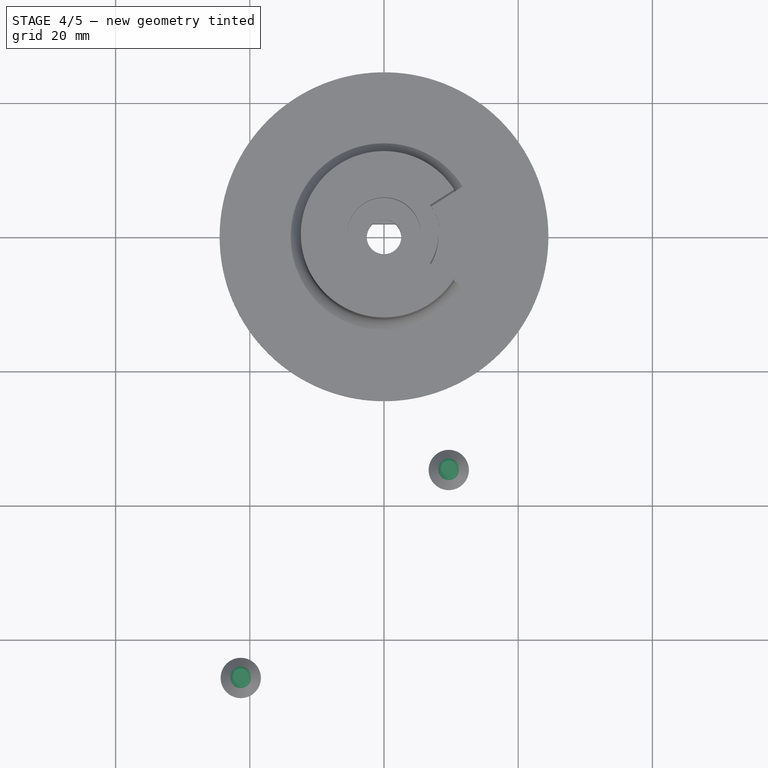
[diagram: stage 4 of 5 — top view after this stage's code; geometry added in this stage tinted green]
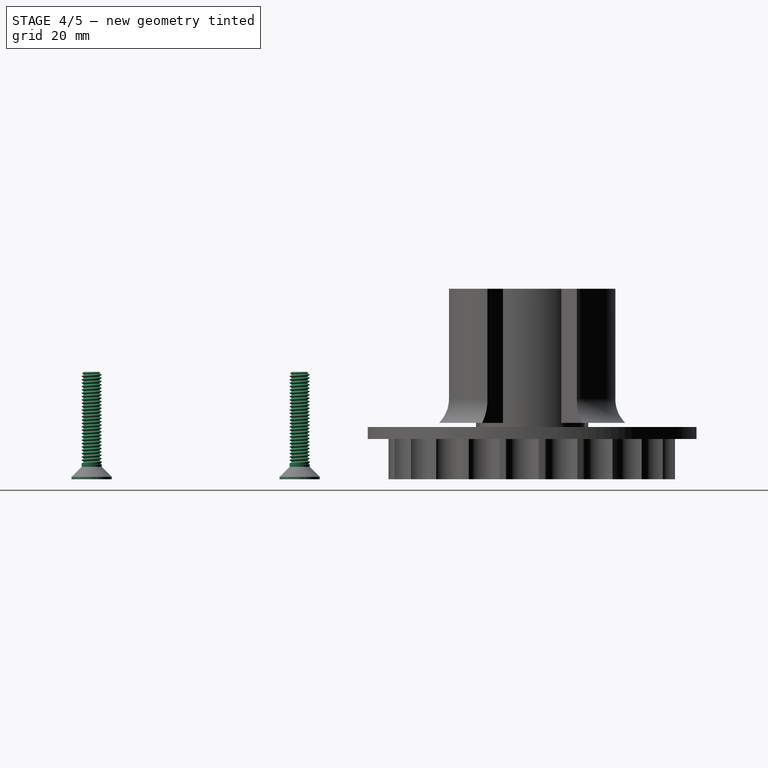
[diagram: stage 4 of 5 — right view after this stage's code; geometry added in this stage tinted green]
FEATURE [Sketcher::SketchObject] Sketch024
  FullyConstrained = true
  MapMode = 5
  Placement = pos=(0,0,3) rot=(0,0,1;0rad)
  Support = -> [Pad024]
  sketch-geometry (1):
    g0: Circle CenterX=0 CenterY=0 CenterZ=0 NormalX=0 NormalY=0 NormalZ=1 AngleXU=0 Radius=5.4
  constraints (2):
    c: Coincident(g0,g-1)
    c: Diameter(g0) = 10.8
FEATURE [PartDesign::Pad] Pad025
  BaseFeature = -> Pad024
  Direction = (0,0,1)
  Length = 20
  Length2 = 100
  Profile = -> Sketch024
  Type = 0
FEATURE [Sketcher::SketchObject] Sketch054
  FullyConstrained = true
  MapMode = 5
  Placement = pos=(0,0,23) rot=(0,0,1;0rad)
  Support = -> [Pad025]
  sketch-geometry (1):
    g0: Circle CenterX=0 CenterY=0 CenterZ=0 NormalX=0 NormalY=0 NormalZ=1 AngleXU=0 Radius=4
  constraints (2):
    c: Coincident(g0,g-1)
    c: Diameter(g0) = 8
FEATURE [PartDesign::Pad] Pad026
  BaseFeature = -> Pad025
  Direction = (0,0,1)
  Length = 3.5
  Length2 = 100
  Profile = -> Sketch054
  Type = 0
FEATURE [PartDesign::Pocket] Pocket007
  BaseFeature = -> Pad026
  Direction = (0,0,-1)
  Length = 5
  Length2 = 100
  Profile = -> Sketch019
  Type = 1
FEATURE [PartDesign::Pocket] Pocket008
  BaseFeature = -> Pocket007
  Direction = (-1,2e-16,-3e-16)
  Length = 0
  Length2 = 100
  Offset = -1.5
  Profile = -> Sketch020
  Type = 3
  UpToFace = -> Pocket007 [Face9]
FEATURE [PartDesign::Hole] Hole001
  BaseFeature = -> Pocket008
  CustomThreadClearance = 0
  Depth = 25
  DepthType = 0
  Diameter = 3.4
  DrillForDepth = false
  DrillPoint = 1
  DrillPointAngle = 118
  HoleCutCountersinkAngle = 90
  HoleCutCustomValues = false
  HoleCutDepth = 0
  HoleCutDiameter = 6.1
  HoleCutType = 0
  ModelThread = false
  Profile = -> Pocket008 [Edge105]
  Tapered = false
  TaperedAngle = 90
  ThreadClass = 0
  ThreadDepth = 23.5
  ThreadDepthType = 0
  ThreadDirection = 0
  ThreadFit = 0
  ThreadSize = 9
  ThreadType = 1
  Threaded = false
  UseCustomThreadClearance = false
FEATURE [PartDesign::Hole] Hole003
  BaseFeature = -> Hole001
  CustomThreadClearance = 0
  Depth = 267.965
  DepthType = 1
  Diameter = 2.9
  DrillForDepth = false
  DrillPoint = 1
  DrillPointAngle = 118
  HoleCutCountersinkAngle = 90
  HoleCutCustomValues = false
  HoleCutDepth = 0
  HoleCutDiameter = 6.1
  HoleCutType = 0
  ModelThread = false
  Profile = -> Pad026 [Face43]
  Tapered = false
  TaperedAngle = 90
  ThreadClass = 0
  ThreadDepth = 267.965
  ThreadDepthType = 0
  ThreadDirection = 0
  ThreadFit = 0
  ThreadSize = 0
  ThreadType = 0
  Threaded = false
  UseCustomThreadClearance = false
FEATURE [Part::FeaturePython] Screw008  label="M3x16-Screw247"  # Fasteners workbench fastener (typed FeaturePython)
  Placement = pos=(9.65,-34.65,0) rot=(1,0,0;3.14159rad)
  baseObject = -> Body [Edge22]
  diameter = 1
  invert = false
  length = 3
  lengthCustom = 16
  matchOuter = false
  offset = 0
  thread = true
  type = 17
FEATURE [Part::FeaturePython] Screw010  label="M3x16-Screw249"  # Fasteners workbench fastener (typed FeaturePython)
  Placement = pos=(-21.35,-65.65,0) rot=(1,0,0;3.14159rad)
  baseObject = -> Body [Edge23]
  diameter = 1
  invert = false
  length = 3
  lengthCustom = 16
  matchOuter = false
  offset = 0
  thread = true
  type = 17
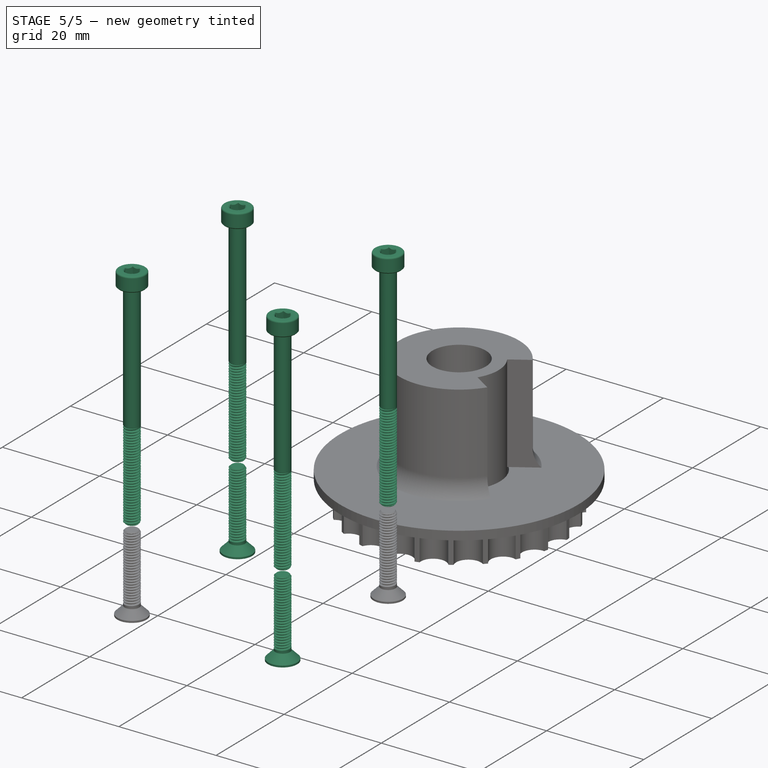
[diagram: stage 5 of 5 — iso view after this stage's code; geometry added in this stage tinted green]
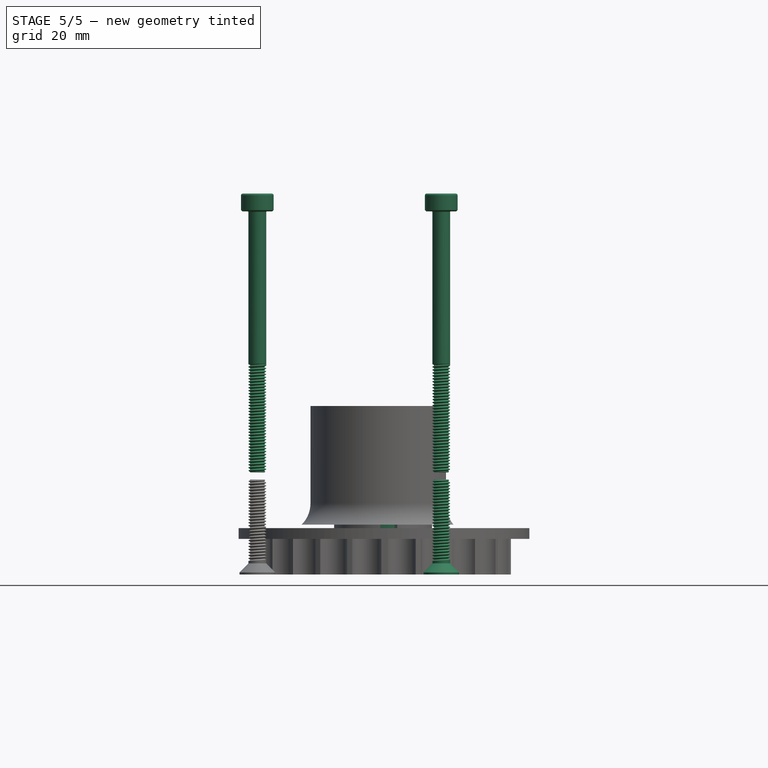
[diagram: stage 5 of 5 — front view after this stage's code; geometry added in this stage tinted green]
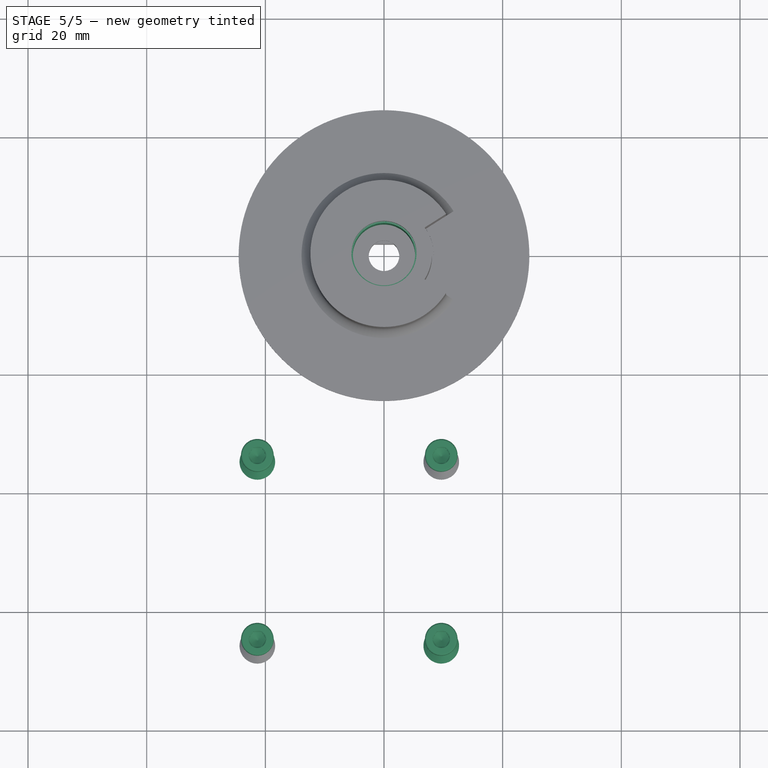
[diagram: stage 5 of 5 — top view after this stage's code; geometry added in this stage tinted green]
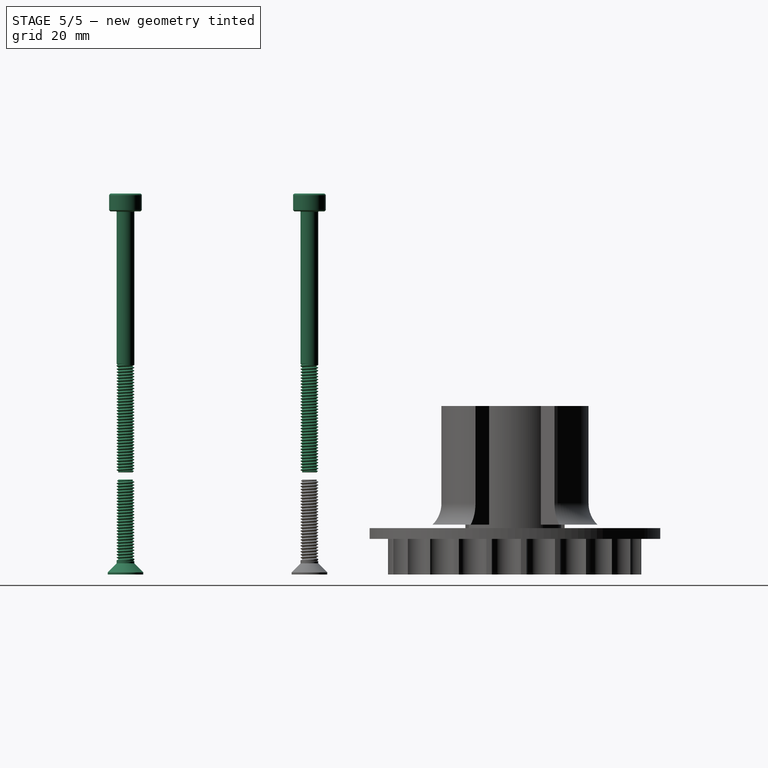
[diagram: stage 5 of 5 — right view after this stage's code; geometry added in this stage tinted green]
FEATURE [Sketcher::SketchObject] Sketch017
  FullyConstrained = true
  MapMode = 5
  Placement = pos=(0,0,0) rot=(1,0,0;1.5708rad)
  Support = -> [XZ_Plane003]
  expr: Constraints[9] = 10.5 / 2
  sketch-geometry (4):
    g0: LineSegment StartX=5.25 StartY=0 StartZ=0 EndX=6.1 EndY=0 EndZ=0
    g1: LineSegment StartX=6.1 StartY=0 StartZ=0 EndX=6.1 EndY=1.25 EndZ=0
    g2: LineSegment StartX=6.1 StartY=1.25 StartZ=0 EndX=5.25 EndY=1.25 EndZ=0
    g3: LineSegment StartX=5.25 StartY=1.25 StartZ=0 EndX=5.25 EndY=0 EndZ=0
  constraints (12):
    c: Coincident(g0,g1)
    c: Coincident(g1,g2)
    c: Coincident(g2,g3)
    c: Coincident(g3,g0)
    c: Horizontal(g0)
    c: Horizontal(g2)
    c: Vertical(g1)
    c: Vertical(g3)
    c: PointOnObject(g0,g-1)
    c: Distance(g-1,g0) = 5.25
    c: Distance(g1) = 1.25
    c: Distance(g0) = 0.85
FEATURE [PartDesign::AdditiveHelix] AdditiveHelix
  Angle = 0
  Axis = (0,-2e-16,1)
  Base = (0,0,0)
  Growth = 0
  HasBeenEdited = true
  Height = 8.1
  LeftHanded = false
  Mode = 2
  Outside = false
  Pitch = 1.24615
  Placement = pos=(0,0,0) rot=(1,0,0;1.5708rad)
  Profile = -> Sketch017
  ReferenceAxis = -> Sketch017 [V_Axis]
  Turns = 6.5
FEATURE [PartDesign::Body] Body003  label="Spring"
  Group = -> [Sketch017,AdditiveHelix]
  Origin = -> Origin003
  Placement = pos=(0,0,2.2) rot=(0,0,1;0rad)
  Tip = -> AdditiveHelix
FEATURE [Part::FeaturePython] Array  # Draft array (typed FeaturePython)
  AlwaysSyncPlacement = false
  Angle = 360
  ArrayType = 0
  Axis = (0,0,1)
  Base = -> Body003
  Center = (0,0,0)
  Count = 2
  ExpandArray = false
  Fuse = false
  IntervalAxis = (0,0,0)
  IntervalX = (100,0,0)
  IntervalY = (0,100,0)
  IntervalZ = (0,0,8.75)
  NumberCircles = 3
  NumberPolar = 5
  NumberX = 1
  NumberY = 1
  NumberZ = 2
  Placement = pos=(0,0,1) rot=(0,0,1;0rad)
  PlacementList = 2 placements: [(0,0,2.2),(0,0,10.95)]
  RadialDistance = 50
  ScaleList = (2) [(1,1,1),(1,1,1)]
  Symmetry = 1
  TangentialDistance = 25
FEATURE [Sketcher::SketchObject] PCB_Sketch_5eb1
  FullyConstrained = true
  sketch-geometry (8):
    g0: LineSegment StartX=-21 StartY=-16.0503 StartZ=0 EndX=-21 EndY=16.0503 EndZ=0
    g1: LineSegment StartX=-16.0503 StartY=21 StartZ=0 EndX=16.0503 EndY=21 EndZ=0
    g2: LineSegment StartX=21 StartY=16.0503 StartZ=0 EndX=21 EndY=-16.0503 EndZ=0
    g3: LineSegment StartX=-16.0503 StartY=-21 StartZ=0 EndX=16.0503 EndY=-21 EndZ=0
    g4: LineSegment StartX=16.0503 StartY=-21 StartZ=0 EndX=21 EndY=-16.0503 EndZ=0
    g5: LineSegment StartX=21 StartY=16.0503 StartZ=0 EndX=16.0503 EndY=21 EndZ=0
    g6: LineSegment StartX=-21 StartY=16.0503 StartZ=0 EndX=-16.0503 EndY=21 EndZ=0
    g7: LineSegment StartX=-21 StartY=-16.0503 StartZ=0 EndX=-16.0503 EndY=-21 EndZ=0
  constraints (22):
    c: Vertical(g0)
    c: Horizontal(g1)
    c: Vertical(g2)
    c: Horizontal(g3)
    c: Coincident(g4,g3)
    c: Coincident(g4,g2)
    c: Coincident(g5,g2)
    c: Coincident(g5,g1)
    c: Coincident(g6,g0)
    c: Coincident(g6,g1)
    c: Coincident(g7,g0)
    c: Coincident(g7,g3)
    c: Equal(g3,g0)
    c: Equal(g0,g1)
    c: Equal(g1,g2)
    c: Equal(g4,g7)
    c: Equal(g7,g6)
    c: Symmetric(g0,g2,g-2)
    c: Symmetric(g3,g1,g-1)
    c: DistanceX(g0,g2) = 42
    c: DistanceY(g3,g1) = 42
    c: Distance(g7) = 7
FEATURE [Part::Feature] Shape002  label="J4_PinHeader_2x02_P254mm_Vertical_60AD7CAF"
  Placement = pos=(19.2,4.25,0) rot=(0,0,-1;1.5708rad)
  shape: bbox 5.08 x 5.08 x 11.54 mm, 88 faces (baked)
FEATURE [Part::Feature] Shape003  label="J1_PinHeader_1x04_P254mm_Vertical_60ADB79A"
  Placement = pos=(19.21,-2.38,0) rot=(0,0,1;0rad)
  shape: bbox 2.54 x 10.16 x 11.54 mm, 100 faces (baked)
FEATURE [Part::Feature] Shape004  label="C14_C_1206_3216Metric_60AD09F3"
  Placement = pos=(-16.1,-6.85,0) rot=(0,0,-1;1.5708rad)
  shape: bbox 1.6 x 3.2 x 1.6 mm, 28 faces (baked)
FEATURE [Part::Feature] Shape  label="R19_R_0603_1608Metric_60B0FF3A"
  Placement = pos=(-18.3,6.9,-1.6) rot=(0,1,0;3.14159rad)
  shape: bbox 1.6 x 0.8 x 0.45 mm, 26 faces (baked)
FEATURE [App::Link] R19_R_0603_1608Metric_60B0FF3A_ln_011  label="R4_R_0603_1608Metric_60AD7915"
  LinkPlacement = pos=(9.85,3.65,0) rot=(0,0,1;1.5708rad)
  LinkedObject = -> Shape
  Placement = pos=(9.85,3.65,0) rot=(0,0,1;1.5708rad)
FEATURE [App::Link] R19_R_0603_1608Metric_60B0FF3A_ln_013  label="R2_R_0603_1608Metric_60B07D62"
  LinkPlacement = pos=(9.85,6.975,0) rot=(0,0,-1;1.5708rad)
  LinkedObject = -> Shape
  Placement = pos=(9.85,6.975,0) rot=(0,0,-1;1.5708rad)
FEATURE [Part::Feature] Shape005  label="SW2_SW_SPST_CK_RS282G05A3_60AD203B"
  Placement = pos=(-18.29,6.6,0) rot=(0,0,-1;1.5708rad)
  shape: bbox 3.5 x 8 x 2.5 mm, 109 faces (baked)
FEATURE [App::Link] SW2_SW_SPST_CK_RS282G05A3_60AD203B_ln_  label="SW1_SW_SPST_CK_RS282G05A3_60AD2020"
  LinkPlacement = pos=(-13.91,6.6,0) rot=(0,0,-1;1.5708rad)
  LinkedObject = -> Shape005
  Placement = pos=(-13.91,6.6,0) rot=(0,0,-1;1.5708rad)
FEATURE [Part::Feature] Shape006  label="R13_R_1206_3216Metric_60B0BF5A"
  Placement = pos=(-19.15,-6.8125,0) rot=(0,0,1;1.5708rad)
  shape: bbox 1.6 x 3.2 x 0.55 mm, 26 faces (baked)
FEATURE [Part::Feature] Shape007  label="J3_PinHeader_1x02_P254mm_Vertical_60AD7995"
  Placement = pos=(13.05,1.7,0) rot=(0,0,1;3.14159rad)
  shape: bbox 2.54 x 5.08 x 11.54 mm, 52 faces (baked)
FEATURE [App::Link] J3_PinHeader_1x02_P254mm_Vertical_60AD7995_ln_  label="J2_PinHeader_1x02_P254mm_Vertical_60AD0AF6"
  LinkPlacement = pos=(9.89,-19.2,0) rot=(0,0,-1;1.5708rad)
  LinkedObject = -> Shape007
  Placement = pos=(9.89,-19.2,0) rot=(0,0,-1;1.5708rad)
FEATURE [Part::Feature] Shape009  label="D1_LED_1210_3225Metric_60B0BF8C"
  Placement = pos=(-18.7,-1.65,0) rot=(0,0,1;1.5708rad)
  shape: bbox 2.5 x 3.2 x 1.1 mm, 50 faces (baked)
FEATURE [Part::Feature] Shape001  label="C13_C_0805_2012Metric_60B0E823"
  Placement = pos=(-18.3,4.5,-1.6) rot=(0,1,0;3.14159rad)
  shape: bbox 2 x 1.25 x 1.25 mm, 28 faces (baked)
FEATURE [App::Link] C13_C_0805_2012Metric_60B0E823_ln_002  label="C21_C_0805_2012Metric_60AD0A6A"
  LinkPlacement = pos=(6.1,-14.5,0) rot=(0,0,1;3.14159rad)
  LinkedObject = -> Shape001
  Placement = pos=(6.1,-14.5,0) rot=(0,0,1;3.14159rad)
FEATURE [App::Link] C13_C_0805_2012Metric_60B0E823_ln_003  label="C20_C_0805_2012Metric_60AD0A59"
  LinkPlacement = pos=(10.5,-14.5,0) rot=(0,0,1;0rad)
  LinkedObject = -> Shape001
  Placement = pos=(10.5,-14.5,0) rot=(0,0,1;0rad)
FEATURE [App::Link] C13_C_0805_2012Metric_60B0E823_ln_004  label="C19_C_0805_2012Metric_60AEA57C"
  LinkPlacement = pos=(15.71,-7.47,0) rot=(0,0,1;0rad)
  LinkedObject = -> Shape001
  Placement = pos=(15.71,-7.47,0) rot=(0,0,1;0rad)
FEATURE [App::Link] C13_C_0805_2012Metric_60B0E823_ln_005  label="C18_C_0805_2012Metric_60AEA5AC"
  LinkPlacement = pos=(15.71,-10.01,0) rot=(0,0,1;0rad)
  LinkedObject = -> Shape001
  Placement = pos=(15.71,-10.01,0) rot=(0,0,1;0rad)
FEATURE [App::Link] C13_C_0805_2012Metric_60B0E823_ln_006  label="C17_C_0805_2012Metric_60AEA5DC"
  LinkPlacement = pos=(15.71,-2.38,0) rot=(0,0,1;0rad)
  LinkedObject = -> Shape001
  Placement = pos=(15.71,-2.38,0) rot=(0,0,1;0rad)
FEATURE [App::Link] C13_C_0805_2012Metric_60B0E823_ln_007  label="C16_C_0805_2012Metric_60AEA60C"
  LinkPlacement = pos=(15.71,-4.93,0) rot=(0,0,1;0rad)
  LinkedObject = -> Shape001
  Placement = pos=(15.71,-4.93,0) rot=(0,0,1;0rad)
FEATURE [Part::Feature] Shape010  label="C9_CP_Elec_5x3_60B0203C"
  Placement = pos=(9.35,-10,0) rot=(0,0,1;0rad)
  shape: bbox 6.985 x 6.828 x 3 mm, 41 faces (baked)
FEATURE [Part::Feature] Shape012  label="U4_TO-92_Inline_Narrow_60A75359"
  Placement = pos=(19,8.55,0) rot=(0,0,1;1.5708rad)
  shape: bbox 3.745 x 4.83 x 9.8 mm, 19 faces (baked)
FEATURE [Part::Feature] Shape014  label="U1_ESP32-WROOM-32_60AF7FE7"
  Placement = pos=(-1.09,5.23,0) rot=(0,0,1;0rad)
  shape: bbox 18 x 25.5 x 3.1 mm, 751 faces (baked)
FEATURE [App::Part] Top_5eb1
  Group = -> [Shape002,Shape003,Shape004,R19_R_0603_1608Metric_60B0FF3A_ln_011,R19_R_0603_1608Metric_60B0FF3A_ln_013,Shape005,SW2_SW_SPST_CK_RS282G05A3_60AD203B_ln_,Shape006,Shape007,J3_PinHeader_1x02_P254mm_Vertical_60AD7995_ln_,Shape009,C13_C_0805_2012Metric_60B0E823_ln_002,C13_C_0805_2012Metric_60B0E823_ln_003,C13_C_0805_2012Metric_60B0E823_ln_004,C13_C_0805_2012Metric_60B0E823_ln_005,+5 more]
  Origin = -> Origin007
FEATURE [App::Link] R19_R_0603_1608Metric_60B0FF3A_ln_  label="R18_R_0603_1608Metric_60B0FF29"
  LinkPlacement = pos=(-13.875,6.9,-1.6) rot=(0,1,0;3.14159rad)
  LinkedObject = -> Shape
  Placement = pos=(-13.875,6.9,-1.6) rot=(0,1,0;3.14159rad)
FEATURE [App::Link] C13_C_0805_2012Metric_60B0E823_ln_  label="C11_C_0805_2012Metric_60B0E7F2"
  LinkPlacement = pos=(-13.9,4.5,-1.6) rot=(0,1,0;3.14159rad)
  LinkedObject = -> Shape001
  Placement = pos=(-13.9,4.5,-1.6) rot=(0,1,0;3.14159rad)
FEATURE [App::Link] C13_C_0805_2012Metric_60B0E823_ln_001  label="C7_C_0805_2012Metric_60B0125E"
  LinkPlacement = pos=(-4.35,-13.75,-1.6) rot=(0.707107,0.707107,0;3.14159rad)
  LinkedObject = -> Shape001
  Placement = pos=(-4.35,-13.75,-1.6) rot=(0.707107,0.707107,0;3.14159rad)
FEATURE [App::Link] C14_C_1206_3216Metric_60AD09F3_ln_  label="C12_C_1206_3216Metric_60B0AFEE"
  LinkPlacement = pos=(-10.2,-17.325,-1.6) rot=(0.707107,0.707107,0;3.14159rad)
  LinkedObject = -> Shape004
  Placement = pos=(-10.2,-17.325,-1.6) rot=(0.707107,0.707107,0;3.14159rad)
FEATURE [App::Link] C14_C_1206_3216Metric_60AD09F3_ln_001  label="C3_C_1206_3216Metric_60AFD6A3"
  LinkPlacement = pos=(-5.3,10.2,-1.6) rot=(0,1,0;3.14159rad)
  LinkedObject = -> Shape004
  Placement = pos=(-5.3,10.2,-1.6) rot=(0,1,0;3.14159rad)
FEATURE [App::Link] R19_R_0603_1608Metric_60B0FF3A_ln_001  label="R17_R_0603_1608Metric_60AD2005"
  LinkPlacement = pos=(-13.9,8.95,-1.6) rot=(0,1,0;3.14159rad)
  LinkedObject = -> Shape
  Placement = pos=(-13.9,8.95,-1.6) rot=(0,1,0;3.14159rad)
FEATURE [App::Link] R19_R_0603_1608Metric_60B0FF3A_ln_002  label="R16_R_0603_1608Metric_60AD0C3D"
  LinkPlacement = pos=(-7.65,-9.225,-1.6) rot=(-0.707107,0.707107,0;3.14159rad)
  LinkedObject = -> Shape
  Placement = pos=(-7.65,-9.225,-1.6) rot=(-0.707107,0.707107,0;3.14159rad)
FEATURE [App::Link] R19_R_0603_1608Metric_60B0FF3A_ln_003  label="R15_R_0603_1608Metric_60AD0C2C"
  LinkPlacement = pos=(-9.45,-9.225,-1.6) rot=(0.707107,0.707107,0;3.14159rad)
  LinkedObject = -> Shape
  Placement = pos=(-9.45,-9.225,-1.6) rot=(0.707107,0.707107,0;3.14159rad)
FEATURE [App::Link] R19_R_0603_1608Metric_60B0FF3A_ln_004  label="R14_R_0603_1608Metric_60AC938B"
  LinkPlacement = pos=(2.45,-16.6,-1.6) rot=(0.707107,0.707107,0;3.14159rad)
  LinkedObject = -> Shape
  Placement = pos=(2.45,-16.6,-1.6) rot=(0.707107,0.707107,0;3.14159rad)
FEATURE [App::Link] R19_R_0603_1608Metric_60B0FF3A_ln_005  label="R12_R_0603_1608Metric_60AFD6D3"
  LinkPlacement = pos=(4.75,9.74,-1.6) rot=(1,0,0;3.14159rad)
  LinkedObject = -> Shape
  Placement = pos=(4.75,9.74,-1.6) rot=(1,0,0;3.14159rad)
FEATURE [App::Link] R19_R_0603_1608Metric_60B0FF3A_ln_006  label="R11_R_0603_1608Metric_60AFD733"
  LinkPlacement = pos=(4.28,7.14,-1.6) rot=(1,0,0;3.14159rad)
  LinkedObject = -> Shape
  Placement = pos=(4.28,7.14,-1.6) rot=(1,0,0;3.14159rad)
FEATURE [App::Link] R19_R_0603_1608Metric_60B0FF3A_ln_007  label="R8_R_0603_1608Metric_60AFD673"
  LinkPlacement = pos=(-1.51,-6.16,-1.6) rot=(0,1,0;3.14159rad)
  LinkedObject = -> Shape
  Placement = pos=(-1.51,-6.16,-1.6) rot=(0,1,0;3.14159rad)
FEATURE [App::Link] R19_R_0603_1608Metric_60B0FF3A_ln_008  label="R7_R_0603_1608Metric_60AFD7D8"
  LinkPlacement = pos=(4.66,1.25,-1.6) rot=(1,0,0;3.14159rad)
  LinkedObject = -> Shape
  Placement = pos=(4.66,1.25,-1.6) rot=(1,0,0;3.14159rad)
FEATURE [App::Link] R19_R_0603_1608Metric_60B0FF3A_ln_009  label="R6_R_0603_1608Metric_60A7521E"
  LinkPlacement = pos=(14.05,10.3,-1.6) rot=(-0.707107,0.707107,0;3.14159rad)
  LinkedObject = -> Shape
  Placement = pos=(14.05,10.3,-1.6) rot=(-0.707107,0.707107,0;3.14159rad)
FEATURE [App::Link] R19_R_0603_1608Metric_60B0FF3A_ln_010  label="R5_R_0603_1608Metric_60AFD703"
  LinkPlacement = pos=(4.66,-0.5,-1.6) rot=(1,0,0;3.14159rad)
  LinkedObject = -> Shape
  Placement = pos=(4.66,-0.5,-1.6) rot=(1,0,0;3.14159rad)
FEATURE [App::Link] R19_R_0603_1608Metric_60B0FF3A_ln_012  label="R3_R_0603_1608Metric_60AFD7A8"
  LinkPlacement = pos=(1.82,-6.15,-1.6) rot=(0,1,0;3.14159rad)
  LinkedObject = -> Shape
  Placement = pos=(1.82,-6.15,-1.6) rot=(0,1,0;3.14159rad)
FEATURE [App::Link] R19_R_0603_1608Metric_60B0FF3A_ln_014  label="R1_R_0603_1608Metric_60AD1E34"
  LinkPlacement = pos=(-18.3,8.95,-1.6) rot=(0,1,0;3.14159rad)
  LinkedObject = -> Shape
  Placement = pos=(-18.3,8.95,-1.6) rot=(0,1,0;3.14159rad)
FEATURE [App::Link] R13_R_1206_3216Metric_60B0BF5A_ln_  label="R10_R_1206_3216Metric_60A75262"
  LinkPlacement = pos=(6.45,-12.6,-1.6) rot=(0,1,0;3.14159rad)
  LinkedObject = -> Shape006
  Placement = pos=(6.45,-12.6,-1.6) rot=(0,1,0;3.14159rad)
FEATURE [App::Link] R13_R_1206_3216Metric_60B0BF5A_ln_001  label="R9_R_1206_3216Metric_60B015C6"
  LinkPlacement = pos=(6.45,-10.1,-1.6) rot=(0,1,0;3.14159rad)
  LinkedObject = -> Shape006
  Placement = pos=(6.45,-10.1,-1.6) rot=(0,1,0;3.14159rad)
FEATURE [Part::Feature] Shape008  label="D2_D_1206_60B0AD6C"
  Placement = pos=(-7.4,-17.3,-1.6) rot=(0.707107,-0.707107,0;3.14159rad)
  shape: bbox 1.87 x 3.4 x 0.96 mm, 39 faces (baked)
FEATURE [App::Link] C13_C_0805_2012Metric_60B0E823_ln_008  label="C15_C_0805_2012Metric_60AD0A04"
  LinkPlacement = pos=(5.9,-15.1,-1.6) rot=(1,0,0;3.14159rad)
  LinkedObject = -> Shape001
  Placement = pos=(5.9,-15.1,-1.6) rot=(1,0,0;3.14159rad)
FEATURE [App::Link] C13_C_0805_2012Metric_60B0E823_ln_009  label="C10_C_0805_2012Metric_60B0AD15"
  LinkPlacement = pos=(-7.4,-12.7,-1.6) rot=(-0.707107,0.707107,0;3.14159rad)
  LinkedObject = -> Shape001
  Placement = pos=(-7.4,-12.7,-1.6) rot=(-0.707107,0.707107,0;3.14159rad)
FEATURE [App::Link] C13_C_0805_2012Metric_60B0E823_ln_010  label="C8_C_0805_2012Metric_60AD096B"
  LinkPlacement = pos=(5.9,-7.7,-1.6) rot=(1,0,0;3.14159rad)
  LinkedObject = -> Shape001
  Placement = pos=(5.9,-7.7,-1.6) rot=(1,0,0;3.14159rad)
FEATURE [App::Link] C13_C_0805_2012Metric_60B0E823_ln_011  label="C6_C_0805_2012Metric_60A74F04"
  LinkPlacement = pos=(-4.35,-9.9,-1.6) rot=(-0.707107,0.707107,0;3.14159rad)
  LinkedObject = -> Shape001
  Placement = pos=(-4.35,-9.9,-1.6) rot=(-0.707107,0.707107,0;3.14159rad)
FEATURE [App::Link] C13_C_0805_2012Metric_60B0E823_ln_012  label="C5_C_0805_2012Metric_60A74E80"
  LinkPlacement = pos=(0.35,-16.8,-1.6) rot=(0.707107,0.707107,0;3.14159rad)
  LinkedObject = -> Shape001
  Placement = pos=(0.35,-16.8,-1.6) rot=(0.707107,0.707107,0;3.14159rad)
FEATURE [App::Link] C13_C_0805_2012Metric_60B0E823_ln_013  label="C4_C_0805_2012Metric_60A74DFC"
  LinkPlacement = pos=(-2.05,-16.8,-1.6) rot=(0.707107,0.707107,0;3.14159rad)
  LinkedObject = -> Shape001
  Placement = pos=(-2.05,-16.8,-1.6) rot=(0.707107,0.707107,0;3.14159rad)
FEATURE [Part::Feature] Shape011  label="U3_QFN-28-1EP_5x5mm_Pitch0.5mm_60AFFA15"
  Placement = pos=(0.0875,-11.3,-1.6) rot=(0.707107,0.707107,0;3.14159rad)
  shape: bbox 5 x 5 x 0.92 mm, 182 faces (baked)
FEATURE [Part::Feature] Shape013  label="U2_SOIC_8_39x49mm_P127mm_60A752EB"
  Placement = pos=(0,0,-1.6) rot=(0.707107,0.707107,0;3.14159rad)
  shape: bbox 4.9 x 6 x 1.75 mm, 156 faces (baked)
FEATURE [App::Link] C13_C_0805_2012Metric_60B0E823_ln_014  label="C2_C_0805_2012Metric_60B1106A"
  LinkPlacement = pos=(4.88,-2.48,-1.6) rot=(1,0,0;3.14159rad)
  LinkedObject = -> Shape001
  Placement = pos=(4.88,-2.48,-1.6) rot=(1,0,0;3.14159rad)
FEATURE [App::Link] C13_C_0805_2012Metric_60B0E823_ln_015  label="C1_C_0805_2012Metric_60A74CE3"
  LinkPlacement = pos=(16.2,10.2,-1.6) rot=(-0.707107,0.707107,0;3.14159rad)
  LinkedObject = -> Shape001
  Placement = pos=(16.2,10.2,-1.6) rot=(-0.707107,0.707107,0;3.14159rad)
FEATURE [App::Part] Bot_5eb1
  Group = -> [Shape,R19_R_0603_1608Metric_60B0FF3A_ln_,Shape001,C13_C_0805_2012Metric_60B0E823_ln_,C13_C_0805_2012Metric_60B0E823_ln_001,C14_C_1206_3216Metric_60AD09F3_ln_,C14_C_1206_3216Metric_60AD09F3_ln_001,R19_R_0603_1608Metric_60B0FF3A_ln_001,R19_R_0603_1608Metric_60B0FF3A_ln_002,R19_R_0603_1608Metric_60B0FF3A_ln_003,R19_R_0603_1608Metric_60B0FF3A_ln_004,R19_R_0603_1608Metric_60B0FF3A_ln_005,+20 more]
  Origin = -> Origin008
FEATURE [App::Part] Step_Models_5eb1
  Group = -> [Top_5eb1,Bot_5eb1]
  Origin = -> Origin006
FEATURE [PartDesign::CoordinateSystem] Local_CS_5eb1
  AttacherType = Attacher::AttachEngine3D
FEATURE [Part::Feature] Pcb_5eb1
  Placement = pos=(-121,71,0) rot=(0,0,1;0rad)
  shape: bbox 42 x 42 x 1.6 mm, 42 faces (baked)
FEATURE [Part::Feature] topTracks_5eb1
  Placement = pos=(-121,71,0.01) rot=(0,0,1;0rad)
  shape: bbox 40.09 x 38.34 x 2e-07 mm, 93 faces, 0 solids (baked)
FEATURE [Part::Feature] botTracks_5eb1
  Placement = pos=(-121,71,-1.61) rot=(0,0,1;0rad)
  shape: bbox 39.81 x 38.34 x 2e-07 mm, 129 faces, 0 solids (baked)
FEATURE [App::Part] Board_Geoms_5eb1
  Group = -> [Local_CS_5eb1,Pcb_5eb1,PCB_Sketch_5eb1,topTracks_5eb1,botTracks_5eb1]
  Origin = -> Origin009
FEATURE [App::Part] Board_5eb1  label="driver-board"
  Group = -> [Step_Models_5eb1,Board_Geoms_5eb1]
  Origin = -> Origin004
  Placement = pos=(-5.85,-50.15,61.2) rot=(0,0,1;0rad)
  expr: .Placement.Base.z = Pad.Length + 50.8 mm
FEATURE [Part::FeaturePython] Screw004  label="M3x44-Screw"  # Fasteners workbench fastener (typed FeaturePython)
  Placement = pos=(-21.35,-65.65,61.2) rot=(0,0,1;0rad)
  diameter = 4
  invert = false
  length = 10
  lengthCustom = 44
  matchOuter = false
  offset = 0
  thread = true
  type = 33
FEATURE [Part::FeaturePython] Screw005  label="M3x44-Screw007"  # Fasteners workbench fastener (typed FeaturePython)
  Placement = pos=(9.65,-65.65,61.2) rot=(0,0,1;0rad)
  diameter = 4
  invert = false
  length = 10
  lengthCustom = 44
  matchOuter = false
  offset = 0
  thread = true
  type = 33
FEATURE [Part::FeaturePython] Screw006  label="M3x44-Screw008"  # Fasteners workbench fastener (typed FeaturePython)
  Placement = pos=(-21.35,-34.65,61.2) rot=(0,0,1;0rad)
  diameter = 4
  invert = false
  length = 10
  lengthCustom = 44
  matchOuter = false
  offset = 0
  thread = true
  type = 33
FEATURE [Part::FeaturePython] Screw007  label="M3x44-Screw006"  # Fasteners workbench fastener (typed FeaturePython)
  Placement = pos=(9.65,-34.65,61.2) rot=(0,0,1;0rad)
  diameter = 4
  invert = false
  length = 10
  lengthCustom = 44
  matchOuter = false
  offset = 0
  thread = true
  type = 33
FEATURE [PartDesign::Body] Body  label="Bracket"
  Group = -> [Sketch,Pad,Sketch005,Hole,Sketch006,Pocket,Sketch007,Pad002,Pad023,Pad024,Pad025,Pad026,Sketch054,Sketch021,Sketch023,Sketch024,Sketch019,Pocket007,Sketch020,Pocket008,Hole001,Hole003]
  Origin = -> Origin
  Tip = -> Hole003
FEATURE [Part::FeaturePython] Screw  label="M3x16-Screw"  # Fasteners workbench fastener (typed FeaturePython)
  Placement = pos=(9.65,-65.65,0) rot=(1,0,0;3.14159rad)
  baseObject = -> Body [Edge21]
  diameter = 1
  invert = false
  length = 3
  lengthCustom = 16
  matchOuter = false
  offset = 0
  thread = true
  type = 17
FEATURE [Part::FeaturePython] Screw009  label="M3x16-Screw248"  # Fasteners workbench fastener (typed FeaturePython)
  Placement = pos=(-21.35,-34.65,0) rot=(1,0,0;3.14159rad)
  baseObject = -> Body [Edge25]
  diameter = 1
  invert = false
  length = 3
  lengthCustom = 16
  matchOuter = false
  offset = 0
  thread = true
  type = 17
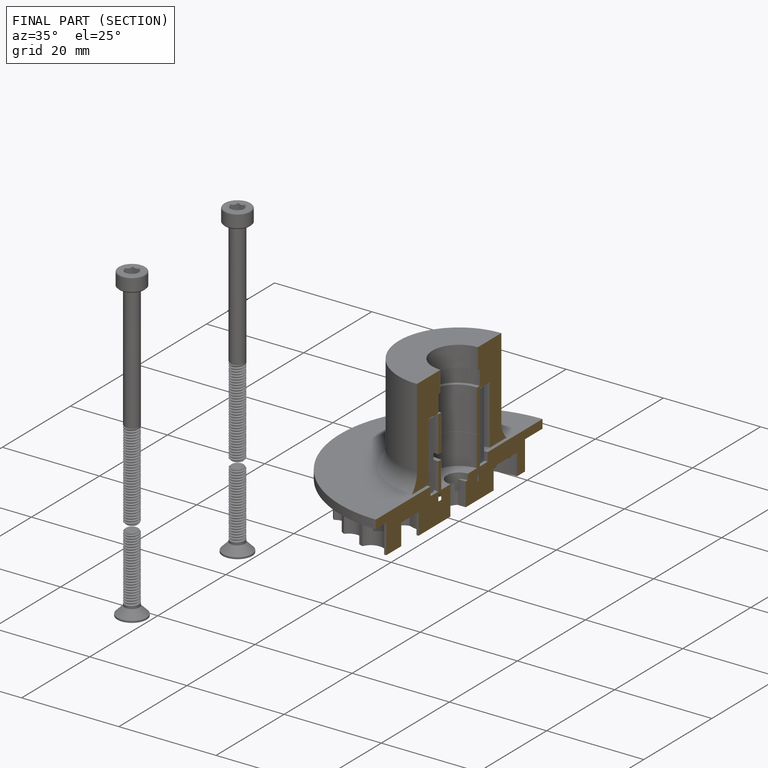
[diagram: finished part — half-section view (interior)]
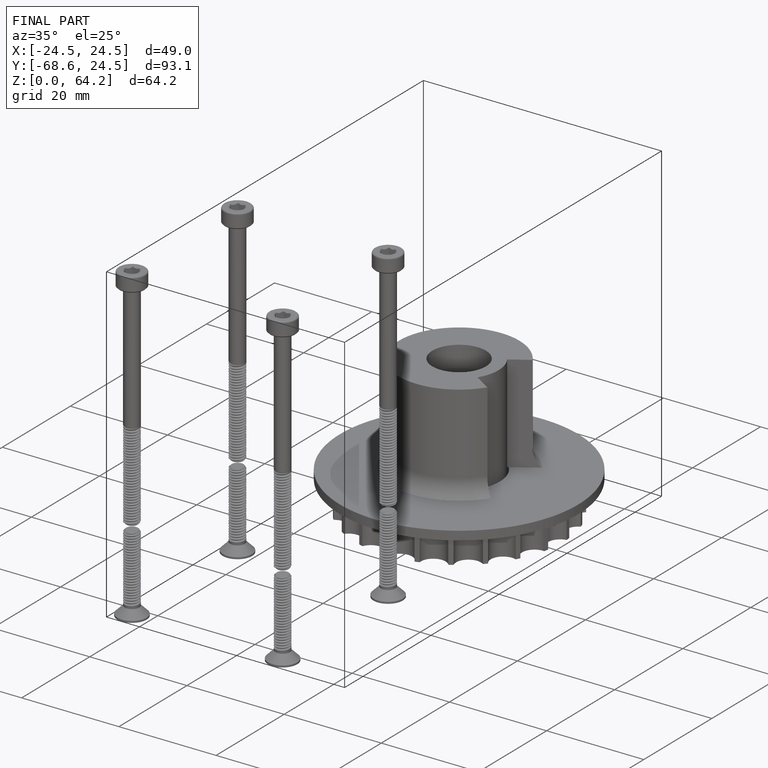
[diagram: finished part — iso view with bounding-box wireframe]
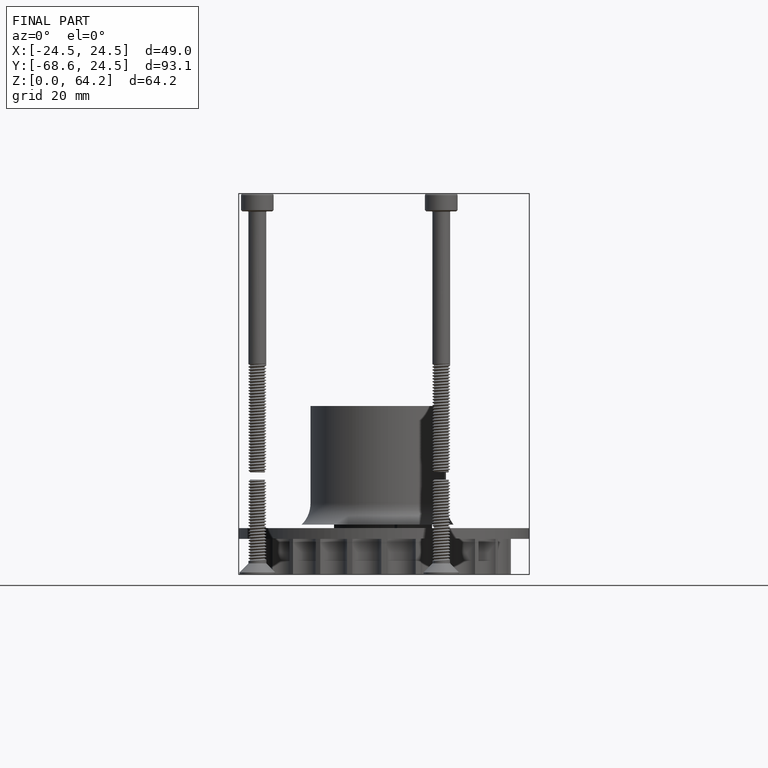
[diagram: finished part — front view with bounding-box wireframe]
